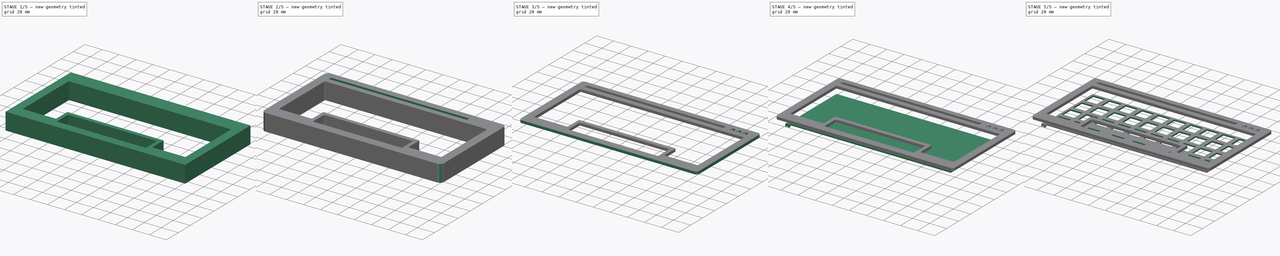
[diagram: build sequence overview — one tinted view per stage of 5, left to right]
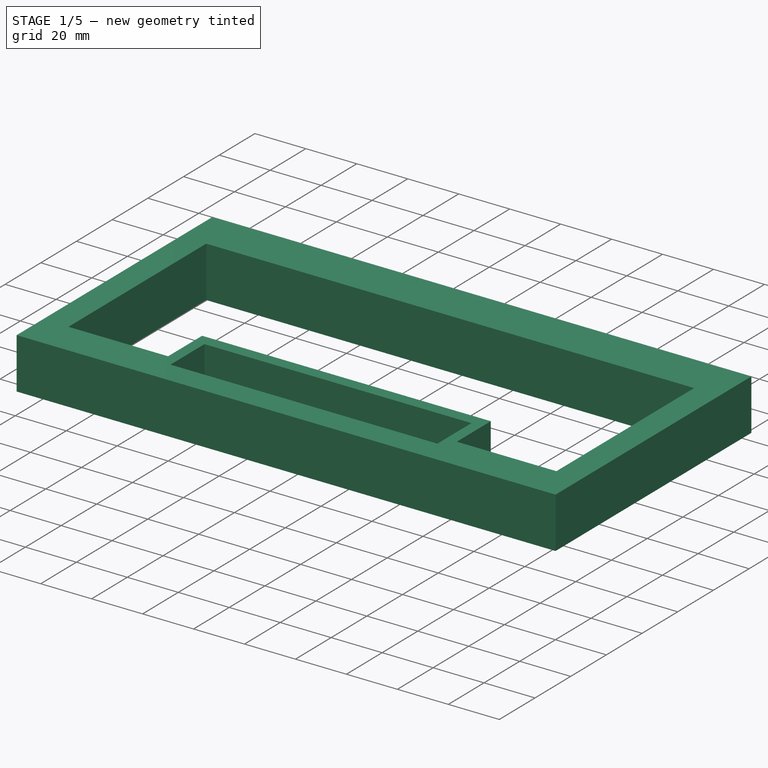
[diagram: stage 1 of 5 — iso view after this stage's code; geometry added in this stage tinted green]
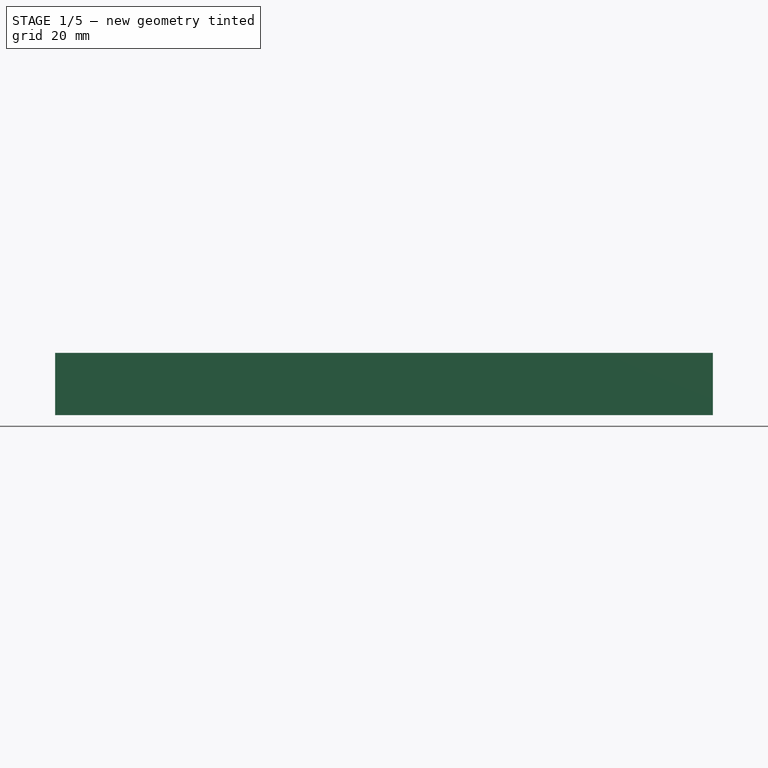
[diagram: stage 1 of 5 — front view after this stage's code; geometry added in this stage tinted green]
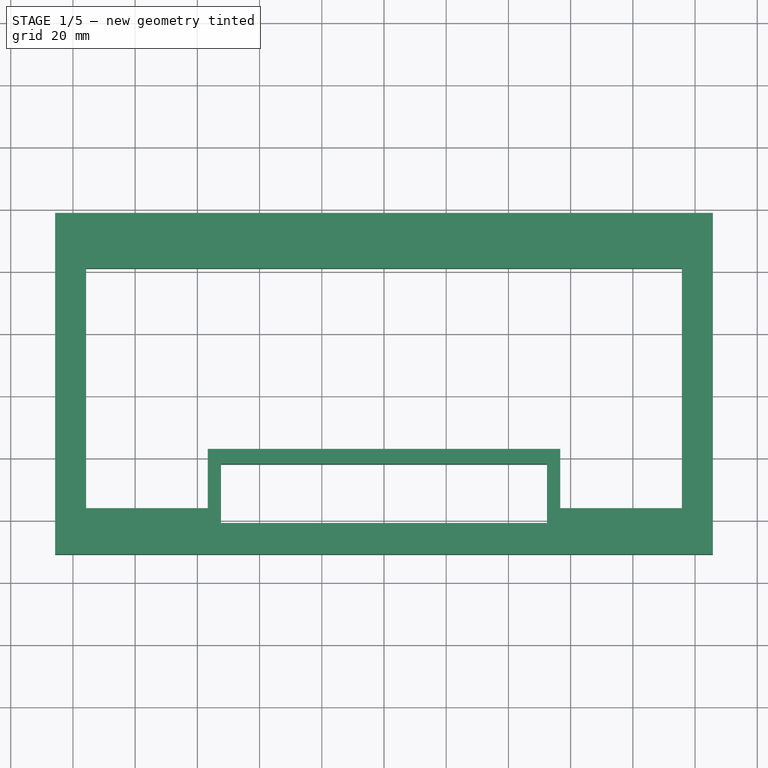
[diagram: stage 1 of 5 — top view after this stage's code; geometry added in this stage tinted green]
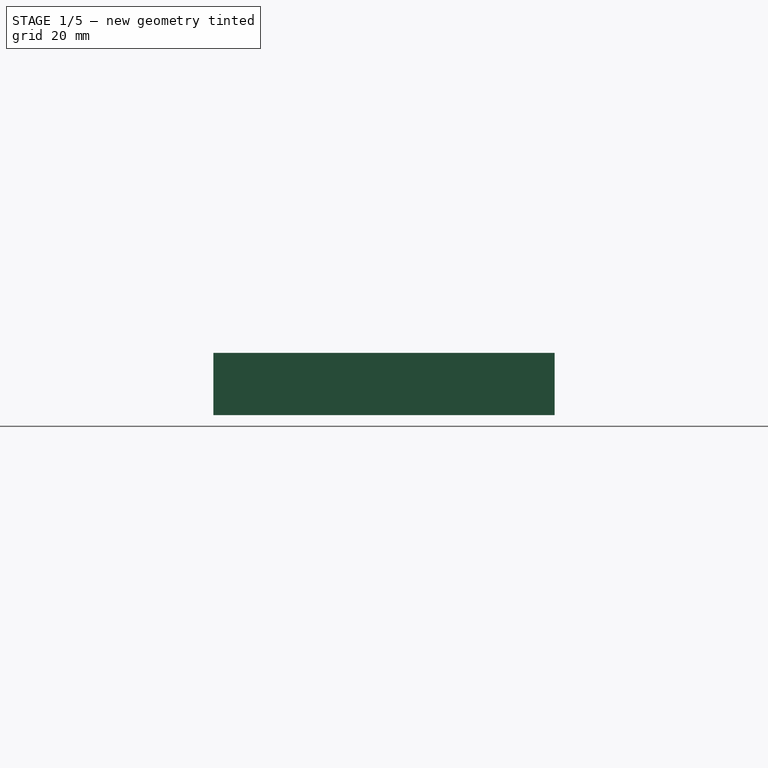
[diagram: stage 1 of 5 — right view after this stage's code; geometry added in this stage tinted green]
FCSTD DOCUMENT  (FreeCAD 0.20R29076 (Git))
Label: platecase
License: All rights reserved
LicenseURL: http://en.wikipedia.org/wiki/All_rights_reserved
objects: Sketcher::SketchObject×11, PartDesign::Pocket×8, PartDesign::Pad×4, PartDesign::Body×4, PartDesign::LinearPattern×2, PartDesign::Fillet×2, Spreadsheet::Sheet×1, PartDesign::MultiTransform×1, PartDesign::ShapeBinder×1
note: 47 computed .brp shape members not serialized (recipe doc carries the construction recipe); baked Part::Feature solids carry a one-line shape summary decoded from their .brp

FEATURE [PartDesign::Body] Body  label="plate"
  Group = -> [Sketch,Pad,Sketch001,Pocket,MultiTransform,LinearPattern,LinearPattern001,Sketch002,Pocket001]
  Origin = -> Origin
  Tip = -> Pocket001
FEATURE [Sketcher::SketchObject] Sketch003
  FullyConstrained = true
  MapMode = 5
  Support = -> [XY_Plane001]
  expr: Constraints[10] = <<vals>>.spacing * 4 + 2 * <<vals>>.border + 2 * <<vals>>.keysafety + <<vals>>.spaceOffset + <<vals>>.topExtr
  expr: Constraints[7] = <<vals>>.spacing * 10 + 2 * <<vals>>.border + 2 * <<vals>>.keysafety
  expr: Constraints[8] = (<<vals>>.spacing * 4 + 2 * <<vals>>.border + 2 * <<vals>>.keysafety + <<vals>>.spaceOffset) / 2
  sketch-geometry (4):
    g0: LineSegment StartX=-105.75 StartY=58.7438 StartZ=0 EndX=105.75 EndY=58.7438 EndZ=0
    g1: LineSegment StartX=105.75 StartY=58.7438 StartZ=0 EndX=105.75 EndY=-50.9813 EndZ=0
    g2: LineSegment StartX=105.75 StartY=-50.9813 StartZ=0 EndX=-105.75 EndY=-50.9813 EndZ=0
    g3: LineSegment StartX=-105.75 StartY=-50.9813 StartZ=0 EndX=-105.75 EndY=58.7438 EndZ=0
  constraints (11):
    c: Coincident(g0,g1)
    c: Coincident(g1,g2)
    c: Coincident(g2,g3)
    c: Coincident(g3,g0)
    c: Horizontal(g0)
    c: Vertical(g1)
    c: Vertical(g3)
    c: DistanceX(g0,g0) = 211.5
    c: DistanceY(g2,g-1) = 50.9813
    c: Symmetric(g2,g1,g-2)
    c: DistanceY(g3,g3) = 109.725
FEATURE [PartDesign::Pad] Pad001
  Direction = (0,0,1)
  Length = 20
  Length2 = 10
  Midplane = true
  Profile = -> Sketch003
  ReferenceAxis = -> Sketch003 [N_Axis]
  Type = 0
FEATURE [Sketcher::SketchObject] Sketch004
  ExternalGeometry = -> [Pad001]
  FullyConstrained = true
  MapMode = 5
  Placement = pos=(0,0,10) rot=(0,0,1;0rad)
  Support = -> [Pad001]
  expr: Constraints[15] = <<vals>>.spacing * 10 + <<vals>>.keysafety * 2
  expr: Constraints[16] = <<vals>>.spacing * 4 + 2 * <<vals>>.keysafety
  expr: Constraints[18] = <<vals>>.spacing * 3 + 2 * <<vals>>.keysafety
  expr: Constraints[19] = <<vals>>.spacing * 2 + 2 * <<vals>>.keysafety
  expr: Constraints[20] = <<vals>>.border + <<vals>>.topExtr
  sketch-geometry (8):
    g0: LineSegment StartX=-95.75 StartY=40.9813 StartZ=0 EndX=-95.75 EndY=-36.2187 EndZ=0
    g1: LineSegment StartX=-95.75 StartY=-36.2187 StartZ=0 EndX=-56.65 EndY=-36.2187 EndZ=0
    g2: LineSegment StartX=-56.65 StartY=-36.2187 StartZ=0 EndX=-56.65 EndY=-17.1687 EndZ=0
    g3: LineSegment StartX=-56.65 StartY=-17.1687 StartZ=0 EndX=56.65 EndY=-17.1687 EndZ=0
    g4: LineSegment StartX=56.65 StartY=-17.1687 StartZ=0 EndX=56.65 EndY=-36.2187 EndZ=0
    g5: LineSegment StartX=56.65 StartY=-36.2187 StartZ=0 EndX=95.75 EndY=-36.2187 EndZ=0
    g6: LineSegment StartX=95.75 StartY=-36.2187 StartZ=0 EndX=95.75 EndY=40.9813 EndZ=0
    g7: LineSegment StartX=95.75 StartY=40.9813 StartZ=0 EndX=-95.75 EndY=40.9813 EndZ=0
  constraints (21):
    c: Vertical(g0)
    c: Coincident(g0,g1)
    c: Coincident(g1,g2)
    c: Coincident(g3,g4)
    c: Coincident(g4,g5)
    c: Coincident(g5,g6)
    c: Vertical(g6)
    c: Coincident(g6,g7)
    c: Coincident(g7,g0)
    c: Horizontal(g7)
    c: Horizontal(g1)
    c: Vertical(g4)
    c: Symmetric(g2,g3,g-2)
    c: Symmetric(g4,g1,g-2)
    c: Symmetric(g0,g5,g-2)
    c: DistanceX(g7,g7) = 191.5
    c: DistanceY(g0,g0) = 77.2
    c: Coincident(g2,g3)
    c: DistanceY(g2,g0) = 58.15
    c: DistanceX(g1,g1) = 39.1
    c: DistanceY(g0,g-3) = 17.7625
FEATURE [PartDesign::Pocket] Pocket002
  BaseFeature = -> Pad001
  Direction = (0,0,-1)
  Length = 30
  Length2 = 5
  Profile = -> Sketch004
  ReferenceAxis = -> Sketch004 [N_Axis]
  Type = 0
FEATURE [Sketcher::SketchObject] Sketch005
  ExternalGeometry = -> [Pocket002]
  FullyConstrained = true
  MapMode = 5
  Placement = pos=(0,0,10) rot=(0,0,1;0rad)
  Support = -> [Pocket002]
  expr: Constraints[7] = <<vals>>.sowidth
  expr: Constraints[8] = <<vals>>.spacing
  expr: Constraints[9] = <<vals>>.spaceOffset
  sketch-geometry (4):
    g0: LineSegment StartX=-52.3875 StartY=-21.9312 StartZ=0 EndX=52.3875 EndY=-21.9312 EndZ=0
    g1: LineSegment StartX=52.3875 StartY=-21.9312 StartZ=0 EndX=52.3875 EndY=-40.9812 EndZ=0
    g2: LineSegment StartX=52.3875 StartY=-40.9812 StartZ=0 EndX=-52.3875 EndY=-40.9812 EndZ=0
    g3: LineSegment StartX=-52.3875 StartY=-40.9812 StartZ=0 EndX=-52.3875 EndY=-21.9312 EndZ=0
  constraints (11):
    c: Coincident(g0,g1)
    c: Coincident(g1,g2)
    c: Coincident(g2,g3)
    c: Coincident(g3,g0)
    c: Horizontal(g2)
    c: Vertical(g1)
    c: Vertical(g3)
    c: DistanceX(g0,g0) = 104.775
    c: DistanceY(g3,g3) = 19.05
    c: DistanceY(g0,g-3) = 4.7625
    c: Symmetric(g0,g0,g-2)
FEATURE [PartDesign::Pocket] Pocket003
  BaseFeature = -> Pocket002
  Direction = (0,0,-1)
  Length = 30
  Length2 = 5
  Profile = -> Sketch005
  ReferenceAxis = -> Sketch005 [N_Axis]
  Type = 0
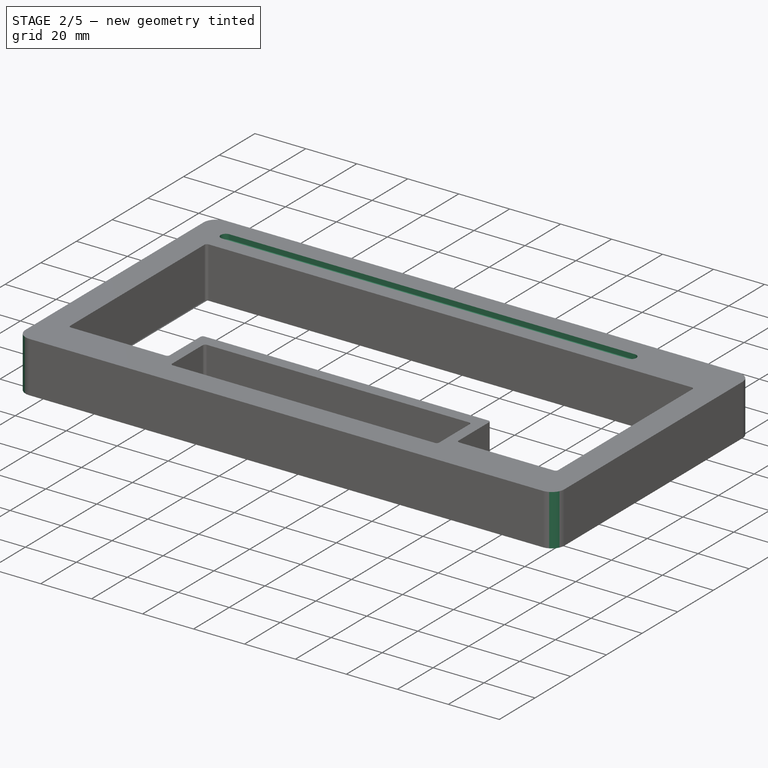
[diagram: stage 2 of 5 — iso view after this stage's code; geometry added in this stage tinted green]
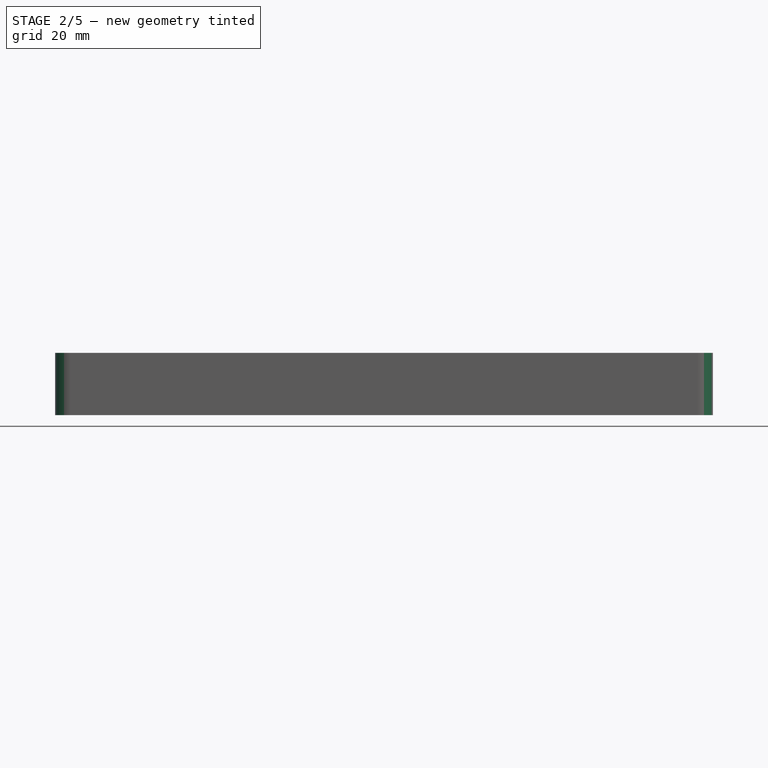
[diagram: stage 2 of 5 — front view after this stage's code; geometry added in this stage tinted green]
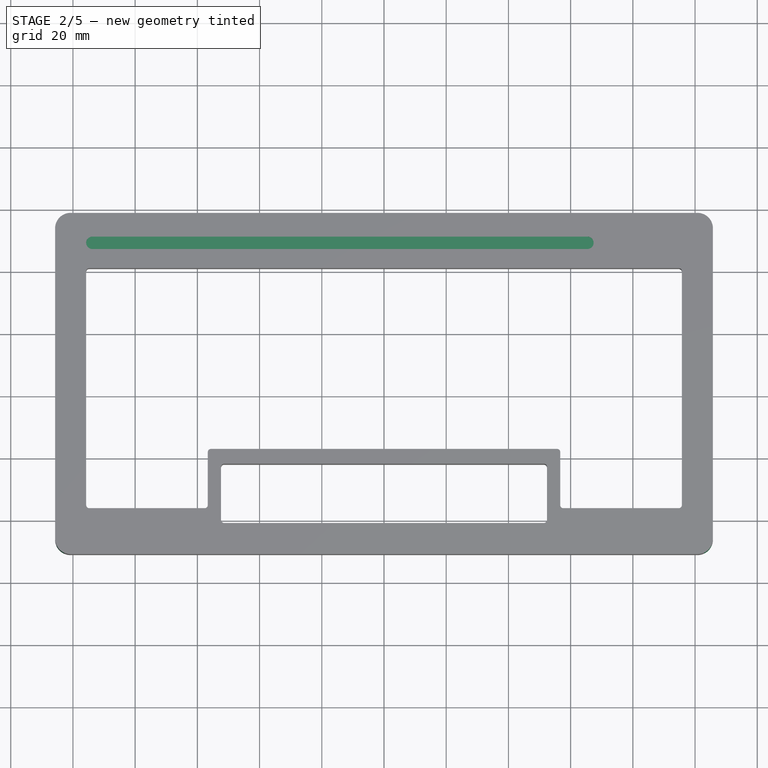
[diagram: stage 2 of 5 — top view after this stage's code; geometry added in this stage tinted green]
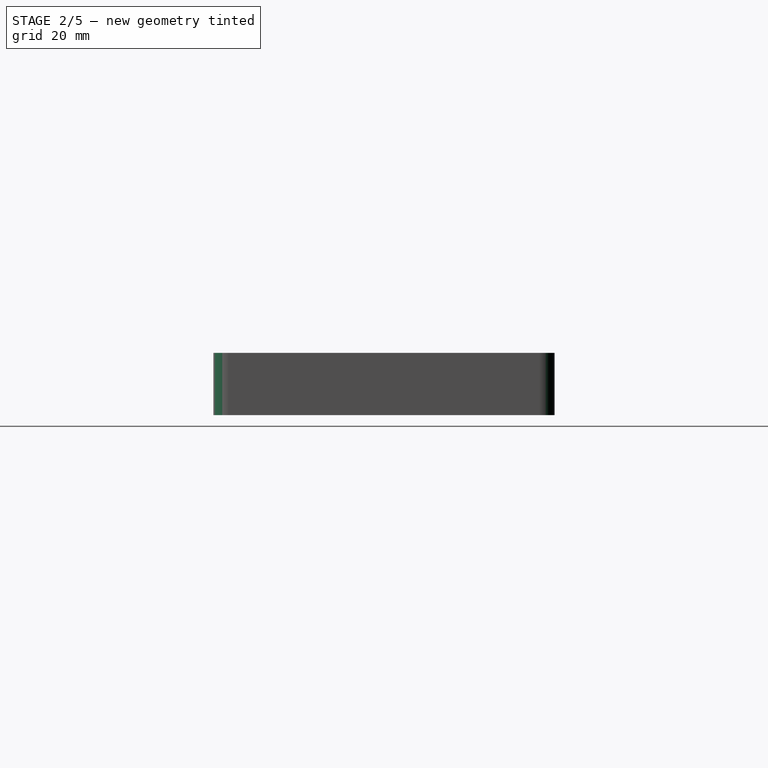
[diagram: stage 2 of 5 — right view after this stage's code; geometry added in this stage tinted green]
FEATURE [Sketcher::SketchObject] Sketch006
  ExternalGeometry = -> [Pocket003]
  FullyConstrained = false
  MapMode = 5
  Placement = pos=(0,0,10) rot=(0,0,1;0rad)
  Support = -> [Pocket003]
  expr: Constraints[24] = <<vals>>.borderWidth
  expr: Constraints[5] = <<vals>>.penHoldHeight
  sketch-geometry (8):
    g0: LineSegment StartX=-93.75 StartY=51.1125 StartZ=0 EndX=65.3788 EndY=51.1125 EndZ=0
    g1: LineSegment StartX=65.3788 StartY=47.1125 StartZ=0 EndX=-93.75 EndY=47.1125 EndZ=0
    g2: LineSegment StartX=-93.75 StartY=47.1125 StartZ=0 EndX=-93.75 EndY=40.9813 EndZ=0
    g3: ArcOfCircle CenterX=-93.75 CenterY=49.1125 CenterZ=0 NormalX=0 NormalY=0 NormalZ=1 AngleXU=0 Radius=2 StartAngle=1.5708 EndAngle=4.71239
    g4: ArcOfCircle CenterX=65.3788 CenterY=49.1125 CenterZ=0 NormalX=0 NormalY=0 NormalZ=1 AngleXU=0 Radius=2 StartAngle=4.71239 EndAngle=7.85398
    g5: LineSegment StartX=65.3788 StartY=49.1125 StartZ=0 EndX=67.3788 EndY=49.1125 EndZ=0
    g6: LineSegment StartX=-93.75 StartY=49.1125 StartZ=0 EndX=-95.75 EndY=49.1125 EndZ=0
    g7: LineSegment StartX=-93.75 StartY=51.1125 StartZ=0 EndX=-93.75 EndY=57.2438 EndZ=0
  constraints (26):
    c: Horizontal(g0)
    c: Horizontal(g1)
    c: Coincident(g2,g1)
    c: PointOnObject(g2,g-3)
    c: Vertical(g2)
    c: DistanceY(g1,g0) = 4
    c: Coincident(g3,g0)
    c: Coincident(g3,g1)
    c: Vertical(g0,g3)
    c: Vertical(g3,g1)
    c: Coincident(g4,g0)
    c: Coincident(g4,g1)
    c: Vertical(g4,g0)
    c: Vertical(g0,g1)
    c: Coincident(g5,g4)
    c: PointOnObject(g5,g4)
    c: Horizontal(g5)
    c: Coincident(g6,g3)
    c: PointOnObject(g6,g3)
    c: Horizontal(g6)
    c: Vertical(g-3,g6)
    c: DistanceY(g-6,g-5) = 14.7625
    c: Coincident(g7,g0)
    c: Vertical(g7)
    c: DistanceY(g7,g-4) = 1.5
    c: Equal(g7,g2)
FEATURE [PartDesign::Pocket] Pocket004
  BaseFeature = -> Pocket003
  Direction = (0,0,-1)
  Length = 2
  Length2 = 5
  Profile = -> Sketch006
  ReferenceAxis = -> Sketch006 [N_Axis]
  Type = 0
FEATURE [PartDesign::Fillet] Fillet
  Base = -> Pocket004 [Edge1,Edge5,Edge8,Edge2]
  BaseFeature = -> Pocket004
  Radius = 5
  SupportTransform = false
  UseAllEdges = false
FEATURE [PartDesign::Fillet] Fillet001
  Base = -> Fillet [Edge58,Edge60,Edge62,Edge57,Edge59,Edge56,Edge55,Edge61,Edge64,Edge63,Edge54,Edge53]
  BaseFeature = -> Fillet
  Radius = 1
  SupportTransform = false
  UseAllEdges = false
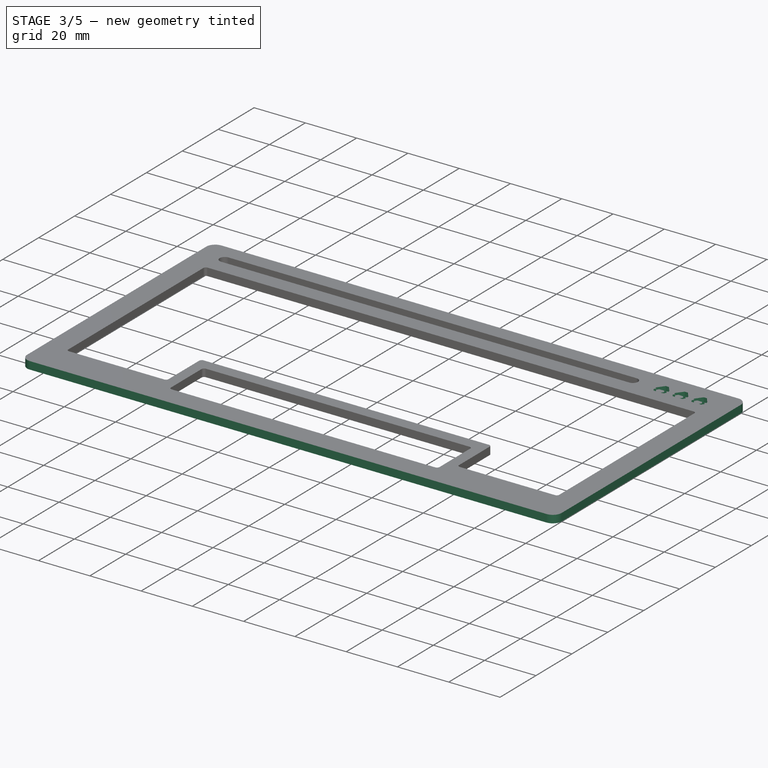
[diagram: stage 3 of 5 — iso view after this stage's code; geometry added in this stage tinted green]
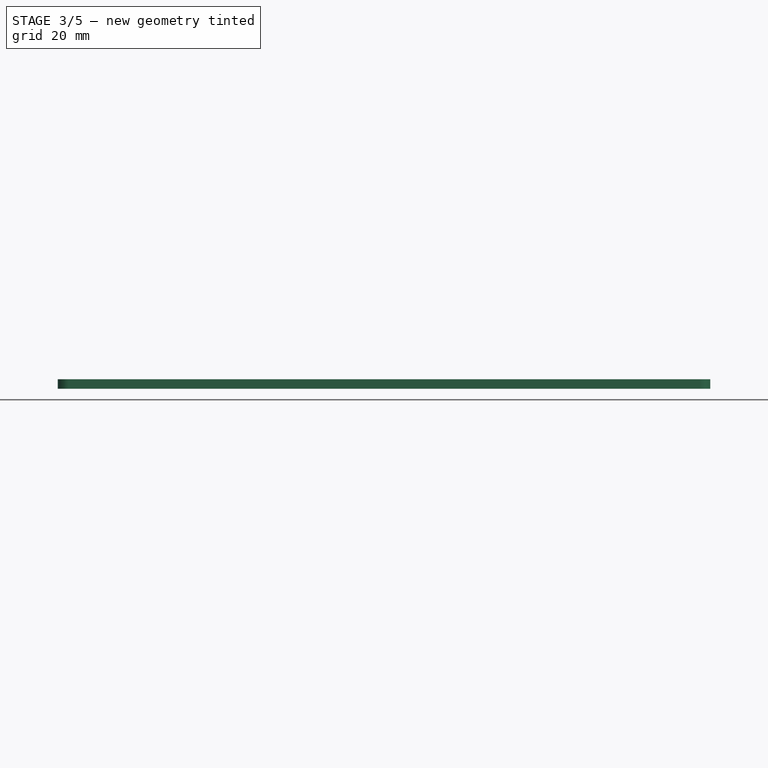
[diagram: stage 3 of 5 — front view after this stage's code; geometry added in this stage tinted green]
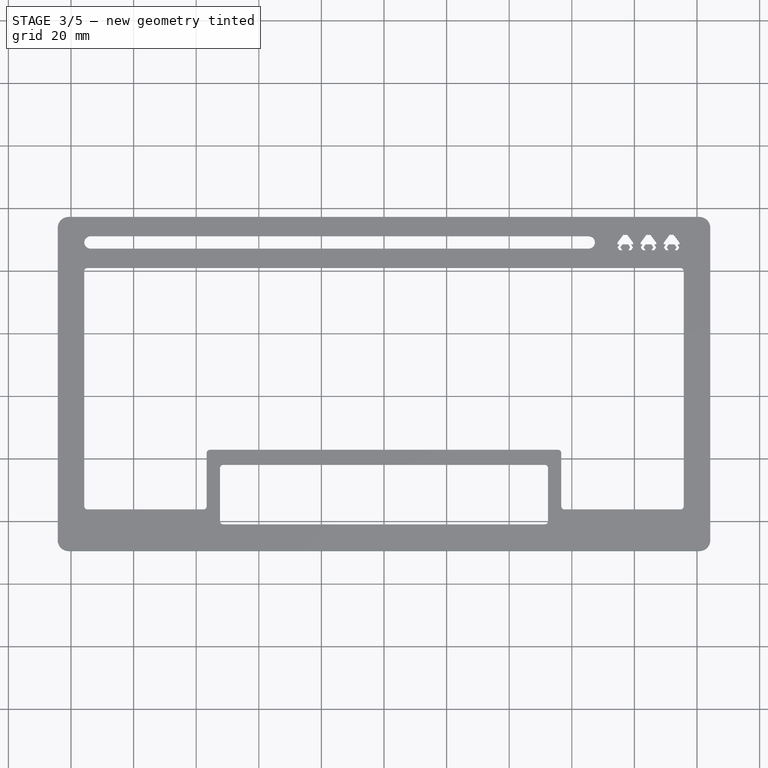
[diagram: stage 3 of 5 — top view after this stage's code; geometry added in this stage tinted green]
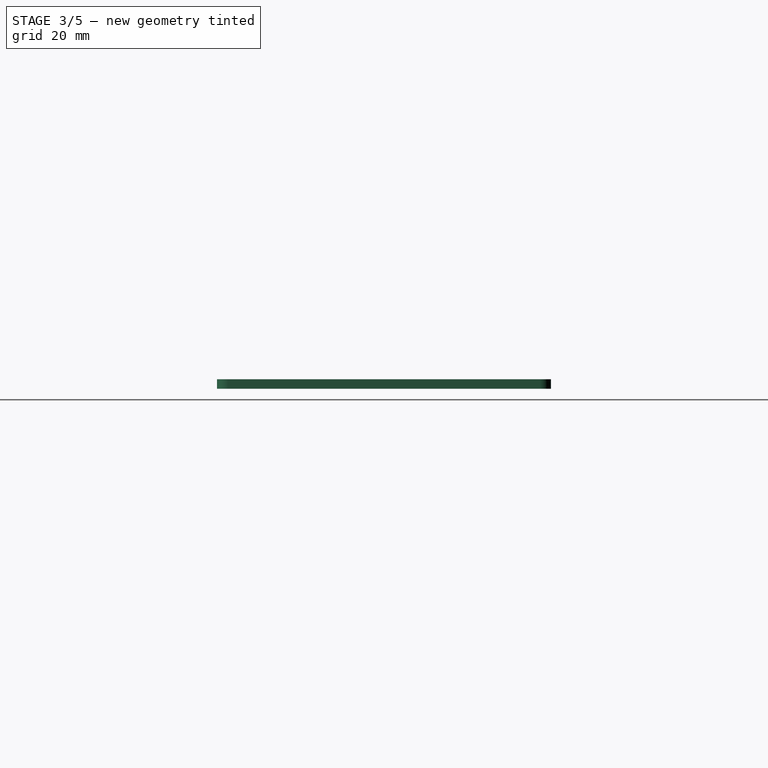
[diagram: stage 3 of 5 — right view after this stage's code; geometry added in this stage tinted green]
FEATURE [Sketcher::SketchObject] Sketch007
  ExternalGeometry = -> [Fillet001]
  FullyConstrained = false
  MapMode = 5
  Placement = pos=(0,0,10) rot=(0,0,1;0rad)
  Support = -> [Fillet001]
  expr: Constraints[335] = <<vals>>.borderWidth
  sketch-geometry (121):
    g0: LineSegment StartX=76.4651 StartY=51.6125 StartZ=0 EndX=77.7151 EndY=51.6125 EndZ=0
    g1: LineSegment StartX=77.7151 StartY=51.6125 StartZ=0 EndX=79.5901 EndY=49.1125 EndZ=0
    g2: LineSegment StartX=79.5901 StartY=49.1125 StartZ=0 EndX=79.5901 EndY=48.4875 EndZ=0
    g3: LineSegment StartX=79.5901 StartY=48.4875 StartZ=0 EndX=78.9651 EndY=48.4875 EndZ=0
    g4: LineSegment StartX=78.0276 StartY=48.4875 StartZ=0 EndX=76.1526 EndY=48.4875 EndZ=0
    g5: LineSegment StartX=76.1526 StartY=48.4875 StartZ=0 EndX=75.5276 EndY=47.55 EndZ=0
    g6: LineSegment StartX=75.5276 StartY=47.55 StartZ=0 EndX=76.1526 EndY=46.6125 EndZ=0
    g7: LineSegment StartX=75.2151 StartY=46.6125 StartZ=0 EndX=74.5901 EndY=47.55 EndZ=0
    g8: LineSegment StartX=74.5901 StartY=47.55 StartZ=0 EndX=75.2151 EndY=48.4875 EndZ=0
    g9: LineSegment StartX=75.2151 StartY=48.4875 StartZ=0 EndX=74.5901 EndY=48.4875 EndZ=0
    g10: LineSegment StartX=74.5901 StartY=48.4875 StartZ=0 EndX=74.5901 EndY=49.1125 EndZ=0
    g11: LineSegment StartX=74.5901 StartY=49.1125 StartZ=0 EndX=76.4651 EndY=51.6125 EndZ=0
    g12: LineSegment StartX=78.0276 StartY=48.4875 StartZ=0 EndX=78.6526 EndY=47.55 EndZ=0
    g13: LineSegment StartX=78.6526 StartY=47.55 StartZ=0 EndX=78.0276 EndY=46.6125 EndZ=0
    g14: LineSegment StartX=78.9651 StartY=46.6125 StartZ=0 EndX=79.5901 EndY=47.55 EndZ=0
    g15: LineSegment StartX=79.5901 StartY=47.55 StartZ=0 EndX=78.9651 EndY=48.4875 EndZ=0
    g16: LineSegment StartX=74.5901 StartY=51.6125 StartZ=0 EndX=75.2151 EndY=51.6125 EndZ=0
    g17: LineSegment StartX=75.2151 StartY=51.6125 StartZ=0 EndX=75.8401 EndY=51.6125 EndZ=0
    g18: LineSegment StartX=75.8401 StartY=51.6125 StartZ=0 EndX=76.4651 EndY=51.6125 EndZ=0
    g19: LineSegment StartX=76.4651 StartY=51.6125 StartZ=0 EndX=77.0901 EndY=51.6125 EndZ=0
    g20: LineSegment StartX=77.0901 StartY=51.6125 StartZ=0 EndX=77.7151 EndY=51.6125 EndZ=0
    g21: LineSegment StartX=77.7151 StartY=51.6125 StartZ=0 EndX=78.3401 EndY=51.6125 EndZ=0
    g22: LineSegment StartX=78.3401 StartY=51.6125 StartZ=0 EndX=78.9651 EndY=51.6125 EndZ=0
    g23: LineSegment StartX=78.9651 StartY=51.6125 StartZ=0 EndX=79.5901 EndY=51.6125 EndZ=0
    g24: LineSegment StartX=79.5901 StartY=51.6125 StartZ=0 EndX=79.5901 EndY=50.9875 EndZ=0
    g25: LineSegment StartX=79.5901 StartY=50.9875 StartZ=0 EndX=79.5901 EndY=50.3625 EndZ=0
    g26: LineSegment StartX=79.5901 StartY=50.3625 StartZ=0 EndX=79.5901 EndY=49.7375 EndZ=0
    g27: LineSegment StartX=79.5901 StartY=49.7375 StartZ=0 EndX=79.5901 EndY=49.1125 EndZ=0
    g28: LineSegment StartX=79.5901 StartY=49.1125 StartZ=0 EndX=79.5901 EndY=48.4875 EndZ=0
    g29: LineSegment StartX=79.5901 StartY=48.4875 StartZ=0 EndX=79.5901 EndY=47.8625 EndZ=0
    g30: LineSegment StartX=79.5901 StartY=47.8625 StartZ=0 EndX=79.5901 EndY=47.2375 EndZ=0
    g31: LineSegment StartX=79.5901 StartY=47.2375 StartZ=0 EndX=79.5901 EndY=46.6125 EndZ=0
    g32: LineSegment StartX=75.2151 StartY=46.6125 StartZ=0 EndX=76.1526 EndY=46.6125 EndZ=0
    g33: LineSegment StartX=78.0276 StartY=46.6125 StartZ=0 EndX=78.9651 EndY=46.6125 EndZ=0
    g34: LineSegment StartX=78.0276 StartY=48.4875 StartZ=0 EndX=78.0276 EndY=51.6125 EndZ=0
    g35: LineSegment StartX=76.1526 StartY=48.4875 StartZ=0 EndX=76.1526 EndY=51.6125 EndZ=0
    g36: LineSegment StartX=95.7818 StartY=51.3623 StartZ=0 EndX=95.7818 EndY=45.8623 EndZ=0
    g37: LineSegment StartX=73.7818 StartY=45.8623 StartZ=0 EndX=73.7818 EndY=51.3623 EndZ=0
    g38: LineSegment StartX=65.2818 StartY=53.017 StartZ=0 EndX=103.282 EndY=53.017 EndZ=0
    g39: LineSegment StartX=65.2818 StartY=41.017 StartZ=0 EndX=65.2818 EndY=53.017 EndZ=0
    g40: GeomPoint X=95.7818 Y=48.6123 Z=0
    g41: LineSegment StartX=95.7818 StartY=51.3623 StartZ=0 EndX=73.7818 EndY=51.3623 EndZ=0
    g42: LineSegment StartX=73.7818 StartY=45.8623 StartZ=0 EndX=95.7818 EndY=45.8623 EndZ=0
    g43: LineSegment StartX=83.869 StartY=51.6093 StartZ=0 EndX=85.119 EndY=51.6093 EndZ=0
    g44: LineSegment StartX=85.119 StartY=51.6093 StartZ=0 EndX=86.994 EndY=49.1093 EndZ=0
    g45: LineSegment StartX=86.994 StartY=49.1093 StartZ=0 EndX=86.994 EndY=48.4843 EndZ=0
    g46: LineSegment StartX=86.994 StartY=48.4843 StartZ=0 EndX=86.369 EndY=48.4843 EndZ=0
    g47: LineSegment StartX=85.4315 StartY=48.4843 StartZ=0 EndX=83.5565 EndY=48.4843 EndZ=0
    g48: LineSegment StartX=83.5565 StartY=48.4843 StartZ=0 EndX=82.9315 EndY=47.5468 EndZ=0
    g49: LineSegment StartX=82.9315 StartY=47.5468 StartZ=0 EndX=83.5565 EndY=46.6093 EndZ=0
    g50: LineSegment StartX=82.619 StartY=46.6093 StartZ=0 EndX=81.994 EndY=47.5468 EndZ=0
    g51: LineSegment StartX=81.994 StartY=47.5468 StartZ=0 EndX=82.619 EndY=48.4843 EndZ=0
    g52: LineSegment StartX=82.619 StartY=48.4843 StartZ=0 EndX=81.994 EndY=48.4843 EndZ=0
    g53: LineSegment StartX=81.994 StartY=48.4843 StartZ=0 EndX=81.994 EndY=49.1093 EndZ=0
    g54: LineSegment StartX=81.994 StartY=49.1093 StartZ=0 EndX=83.869 EndY=51.6093 EndZ=0
    g55: LineSegment StartX=85.4315 StartY=48.4843 StartZ=0 EndX=86.0565 EndY=47.5468 EndZ=0
    g56: LineSegment StartX=86.0565 StartY=47.5468 StartZ=0 EndX=85.4315 EndY=46.6093 EndZ=0
    g57: LineSegment StartX=86.369 StartY=46.6093 StartZ=0 EndX=86.994 EndY=47.5468 EndZ=0
    g58: LineSegment StartX=86.994 StartY=47.5468 StartZ=0 EndX=86.369 EndY=48.4843 EndZ=0
    g59: LineSegment StartX=81.994 StartY=51.6093 StartZ=0 EndX=82.619 EndY=51.6093 EndZ=0
    g60: LineSegment StartX=82.619 StartY=51.6093 StartZ=0 EndX=83.244 EndY=51.6093 EndZ=0
    g61: LineSegment StartX=83.244 StartY=51.6093 StartZ=0 EndX=83.869 EndY=51.6093 EndZ=0
    g62: LineSegment StartX=83.869 StartY=51.6093 StartZ=0 EndX=84.494 EndY=51.6093 EndZ=0
    g63: LineSegment StartX=84.494 StartY=51.6093 StartZ=0 EndX=85.119 EndY=51.6093 EndZ=0
    g64: LineSegment StartX=85.119 StartY=51.6093 StartZ=0 EndX=85.744 EndY=51.6093 EndZ=0
    g65: LineSegment StartX=85.744 StartY=51.6093 StartZ=0 EndX=86.369 EndY=51.6093 EndZ=0
    g66: LineSegment StartX=86.369 StartY=51.6093 StartZ=0 EndX=86.994 EndY=51.6093 EndZ=0
    g67: LineSegment StartX=86.994 StartY=51.6093 StartZ=0 EndX=86.994 EndY=50.9843 EndZ=0
    g68: LineSegment StartX=86.994 StartY=50.9843 StartZ=0 EndX=86.994 EndY=50.3593 EndZ=0
    g69: LineSegment StartX=86.994 StartY=50.3593 StartZ=0 EndX=86.994 EndY=49.7343 EndZ=0
    g70: LineSegment StartX=86.994 StartY=49.7343 StartZ=0 EndX=86.994 EndY=49.1093 EndZ=0
    g71: LineSegment StartX=86.994 StartY=49.1093 StartZ=0 EndX=86.994 EndY=48.4843 EndZ=0
    g72: LineSegment StartX=86.994 StartY=48.4843 StartZ=0 EndX=86.994 EndY=47.8593 EndZ=0
    g73: LineSegment StartX=86.994 StartY=47.8593 StartZ=0 EndX=86.994 EndY=47.2343 EndZ=0
    g74: LineSegment StartX=86.994 StartY=47.2343 StartZ=0 EndX=86.994 EndY=46.6093 EndZ=0
    g75: LineSegment StartX=82.619 StartY=46.6093 StartZ=0 EndX=83.5565 EndY=46.6093 EndZ=0
    g76: LineSegment StartX=85.4315 StartY=46.6093 StartZ=0 EndX=86.369 EndY=46.6093 EndZ=0
    g77: LineSegment StartX=85.4315 StartY=48.4843 StartZ=0 EndX=85.4315 EndY=51.6093 EndZ=0
    g78: LineSegment StartX=83.5565 StartY=48.4843 StartZ=0 EndX=83.5565 EndY=51.6093 EndZ=0
    g79: LineSegment StartX=76.4651 StartY=51.6125 StartZ=0 EndX=83.869 EndY=51.6093 EndZ=0
    g80: LineSegment StartX=91.2729 StartY=51.6061 StartZ=0 EndX=92.5229 EndY=51.6061 EndZ=0
    g81: LineSegment StartX=92.5229 StartY=51.6061 StartZ=0 EndX=94.3979 EndY=49.1061 EndZ=0
    g82: LineSegment StartX=94.3979 StartY=49.1061 StartZ=0 EndX=94.3979 EndY=48.4811 EndZ=0
    g83: LineSegment StartX=94.3979 StartY=48.4811 StartZ=0 EndX=93.7729 EndY=48.4811 EndZ=0
    g84: LineSegment StartX=92.8354 StartY=48.4811 StartZ=0 EndX=90.9604 EndY=48.4811 EndZ=0
    g85: LineSegment StartX=90.9604 StartY=48.4811 StartZ=0 EndX=90.3354 EndY=47.5436 EndZ=0
    g86: LineSegment StartX=90.3354 StartY=47.5436 StartZ=0 EndX=90.9604 EndY=46.6061 EndZ=0
    g87: LineSegment StartX=90.0229 StartY=46.6061 StartZ=0 EndX=89.3979 EndY=47.5436 EndZ=0
    g88: LineSegment StartX=89.3979 StartY=47.5436 StartZ=0 EndX=90.0229 EndY=48.4811 EndZ=0
    g89: LineSegment StartX=90.0229 StartY=48.4811 StartZ=0 EndX=89.3979 EndY=48.4811 EndZ=0
    g90: LineSegment StartX=89.3979 StartY=48.4811 StartZ=0 EndX=89.3979 EndY=49.1061 EndZ=0
    g91: LineSegment StartX=89.3979 StartY=49.1061 StartZ=0 EndX=91.2729 EndY=51.6061 EndZ=0
    g92: LineSegment StartX=92.8354 StartY=48.4811 StartZ=0 EndX=93.4604 EndY=47.5436 EndZ=0
    g93: LineSegment StartX=93.4604 StartY=47.5436 StartZ=0 EndX=92.8354 EndY=46.6061 EndZ=0
    g94: LineSegment StartX=93.7729 StartY=46.6061 StartZ=0 EndX=94.3979 EndY=47.5436 EndZ=0
    g95: LineSegment StartX=94.3979 StartY=47.5436 StartZ=0 EndX=93.7729 EndY=48.4811 EndZ=0
    g96: LineSegment StartX=89.3979 StartY=51.6061 StartZ=0 EndX=90.0229 EndY=51.6061 EndZ=0
    g97: LineSegment StartX=90.0229 StartY=51.6061 StartZ=0 EndX=90.6479 EndY=51.6061 EndZ=0
    g98: LineSegment StartX=90.6479 StartY=51.6061 StartZ=0 EndX=91.2729 EndY=51.6061 EndZ=0
    g99: LineSegment StartX=91.2729 StartY=51.6061 StartZ=0 EndX=91.8979 EndY=51.6061 EndZ=0
    g100: LineSegment StartX=91.8979 StartY=51.6061 StartZ=0 EndX=92.5229 EndY=51.6061 EndZ=0
    g101: LineSegment StartX=92.5229 StartY=51.6061 StartZ=0 EndX=93.1479 EndY=51.6061 EndZ=0
    g102: LineSegment StartX=93.1479 StartY=51.6061 StartZ=0 EndX=93.7729 EndY=51.6061 EndZ=0
    g103: LineSegment StartX=93.7729 StartY=51.6061 StartZ=0 EndX=94.3979 EndY=51.6061 EndZ=0
    g104: LineSegment StartX=94.3979 StartY=51.6061 StartZ=0 EndX=94.3979 EndY=50.9811 EndZ=0
    g105: LineSegment StartX=94.3979 StartY=50.9811 StartZ=0 EndX=94.3979 EndY=50.3561 EndZ=0
    g106: LineSegment StartX=94.3979 StartY=50.3561 StartZ=0 EndX=94.3979 EndY=49.7311 EndZ=0
    g107: LineSegment StartX=94.3979 StartY=49.7311 StartZ=0 EndX=94.3979 EndY=49.1061 EndZ=0
    g108: LineSegment StartX=94.3979 StartY=49.1061 StartZ=0 EndX=94.3979 EndY=48.4811 EndZ=0
    g109: LineSegment StartX=94.3979 StartY=48.4811 StartZ=0 EndX=94.3979 EndY=47.8561 EndZ=0
    g110: LineSegment StartX=94.3979 StartY=47.8561 StartZ=0 EndX=94.3979 EndY=47.2311 EndZ=0
    g111: LineSegment StartX=94.3979 StartY=47.2311 StartZ=0 EndX=94.3979 EndY=46.6061 EndZ=0
    g112: LineSegment StartX=90.0229 StartY=46.6061 StartZ=0 EndX=90.9604 EndY=46.6061 EndZ=0
    g113: LineSegment StartX=92.8354 StartY=46.6061 StartZ=0 EndX=93.7729 EndY=46.6061 EndZ=0
    g114: LineSegment StartX=92.8354 StartY=48.4811 StartZ=0 EndX=92.8354 EndY=51.6061 EndZ=0
    g115: LineSegment StartX=90.9604 StartY=48.4811 StartZ=0 EndX=90.9604 EndY=51.6061 EndZ=0
    g116: LineSegment StartX=83.869 StartY=51.6093 StartZ=0 EndX=91.2729 EndY=51.6061 EndZ=0
    g117: LineSegment StartX=65.2818 StartY=41.017 StartZ=0 EndX=103.282 EndY=41.017 EndZ=0
    g118: LineSegment StartX=103.282 StartY=41.017 StartZ=0 EndX=103.282 EndY=53.017 EndZ=0
    g119: LineSegment StartX=79.5901 StartY=49.1125 StartZ=0 EndX=79.5901 EndY=40.9813 EndZ=0
    g120: LineSegment StartX=79.5901 StartY=49.1125 StartZ=0 EndX=79.5901 EndY=57.2438 EndZ=0
  constraints (337):
    c: Horizontal(g0)
    c: Coincident(g0,g1)
    c: Coincident(g1,g2)
    c: Coincident(g2,g3)
    c: Horizontal(g4)
    c: Coincident(g4,g5)
    c: Coincident(g5,g6)
    c: Coincident(g7,g8)
    c: Coincident(g8,g9)
    c: Coincident(g9,g10)
    c: Coincident(g10,g11)
    c: Coincident(g11,g0)
    c: Coincident(g4,g12)
    c: Coincident(g12,g13)
    c: Coincident(g14,g15)
    c: Coincident(g15,g3)
    c: Horizontal(g14,g12)
    c: Horizontal(g12,g5)
    c: Horizontal(g5,g7)
    c: Equal(g6,g7)
    c: Equal(g7,g13)
    c: Equal(g13,g14)
    c: Horizontal(g14,g13)
    c: Horizontal(g13,g6)
    c: Horizontal(g9)
    c: Horizontal(g3)
    c: Vertical(g2)
    c: Vertical(g10)
    c: Horizontal(g3,g4)
    c: Horizontal(g4,g8)
    c: Parallel(g15,g12)
    c: Parallel(g5,g8)
    c: Equal(g6,g5)
    c: Equal(g12,g13)
    c: Equal(g1,g11)
    c: Equal(g2,g10)
    c: Equal(g3,g9)
    c: Horizontal(g16)
    c: Coincident(g16,g17)
    c: Horizontal(g17)
    c: Coincident(g17,g18)
    c: Coincident(g18,g19)
    c: Horizontal(g19)
    c: Coincident(g19,g20)
    c: Coincident(g20,g21)
    c: Coincident(g21,g22)
    c: Coincident(g22,g23)
    c: Coincident(g23,g24)
    c: Vertical(g24)
    c: Coincident(g24,g25)
    c: Coincident(g25,g26)
    c: Coincident(g26,g27)
    c: Vertical(g27)
    c: Coincident(g27,g28)
    c: Coincident(g28,g29)
    c: Coincident(g29,g30)
    c: Coincident(g30,g31)
    c: Equal(g16,g17)
    c: Equal(g17,g18)
    c: Equal(g18,g20)
    c: Equal(g20,g19)
    c: Equal(g19,g21)
    c: Equal(g21,g22)
    c: Equal(g22,g23)
    c: Equal(g23,g24)
    c: Equal(g24,g25)
    c: Equal(g25,g26)
    c: Equal(g26,g27)
    c: Equal(g27,g28)
    c: Equal(g28,g29)
    c: Equal(g29,g30)
    c: Equal(g30,g31)
    c: Horizontal(g18)
    c: Horizontal(g21)
    c: Horizontal(g22)
    c: Horizontal(g23)
    c: Vertical(g25)
    c: Vertical(g26)
    c: Vertical(g29)
    c: Vertical(g30)
    c: Vertical(g31)
    c: DistanceY(g31,g23) = 5
    c: Coincident(g0,g18)
    c: Coincident(g20,g0)
    c: Coincident(g2,g28)
    c: Coincident(g1,g27)
    c: Symmetric(g29,g30,g14)
    c: Coincident(g32,g7)
    c: Coincident(g32,g6)
    c: Horizontal(g32)
    c: Coincident(g33,g13)
    c: Coincident(g33,g14)
    c: Coincident(g34,g4)
    c: Symmetric(g0,g21,g34)
    c: Vertical(g34)
    c: Vertical(g3,g22)
    c: Coincident(g35,g4)
    c: Vertical(g35)
    c: Symmetric(g17,g0,g35)
    c: Vertical(g13,g4)
    c: Vertical(g36)
    c: Vertical(g37)
    c: DistanceX(g37,g36) = 22
    c: DistanceY(g36,g36) = 5.5
    c: Coincident(g39,g38)
    c: Horizontal(g38)
    c: Vertical(g39)
    c: DistanceX(g38,g38) = 38
    c: Symmetric(g36,g36,g40)
    c: Coincident(g41,g36)
    c: Coincident(g41,g37)
    c: Horizontal(g41)
    c: Coincident(g42,g37)
    c: Coincident(g42,g36)
    c: Horizontal(g42)
    c: Horizontal(g43)
    c: Coincident(g43,g44)
    c: Coincident(g44,g45)
    c: Coincident(g45,g46)
    c: Horizontal(g47)
    c: Coincident(g47,g48)
    c: Coincident(g48,g49)
    c: Coincident(g50,g51)
    c: Coincident(g51,g52)
    c: Coincident(g52,g53)
    c: Coincident(g53,g54)
    c: Coincident(g54,g43)
    c: Coincident(g47,g55)
    c: Coincident(g55,g56)
    c: Coincident(g57,g58)
    c: Coincident(g58,g46)
    c: Horizontal(g57,g55)
    c: Horizontal(g55,g48)
    c: Horizontal(g48,g50)
    c: Equal(g49,g50)
    c: Equal(g50,g56)
    c: Equal(g56,g57)
    c: Horizontal(g57,g56)
    c: Horizontal(g56,g49)
    c: Horizontal(g52)
    c: Horizontal(g46)
    c: Vertical(g45)
    c: Vertical(g53)
    c: Horizontal(g46,g47)
    c: Horizontal(g47,g51)
    c: Parallel(g58,g55)
    c: Parallel(g48,g51)
    c: Equal(g49,g48)
    c: Equal(g55,g56)
    c: Equal(g44,g54)
    c: Equal(g45,g53)
    c: Equal(g46,g52)
    c: Horizontal(g59)
    c: Coincident(g59,g60)
    c: Horizontal(g60)
    c: Coincident(g60,g61)
    c: Coincident(g61,g62)
    c: Horizontal(g62)
    c: Coincident(g62,g63)
    c: Coincident(g63,g64)
    c: Coincident(g64,g65)
    c: Coincident(g65,g66)
    c: Coincident(g66,g67)
    c: Vertical(g67)
    c: Coincident(g67,g68)
    c: Coincident(g68,g69)
    c: Coincident(g69,g70)
    c: Vertical(g70)
    c: Coincident(g70,g71)
    c: Coincident(g71,g72)
    c: Coincident(g72,g73)
    c: Coincident(g73,g74)
    c: Equal(g59,g60)
    c: Equal(g60,g61)
    c: Equal(g61,g63)
    c: Equal(g63,g62)
    c: Equal(g62,g64)
    c: Equal(g64,g65)
    c: Equal(g65,g66)
    c: Equal(g66,g67)
    c: Equal(g67,g68)
    c: Equal(g68,g69)
    c: Equal(g69,g70)
    c: Equal(g70,g71)
    c: Equal(g71,g72)
    c: Equal(g72,g73)
    c: Equal(g73,g74)
    c: Horizontal(g61)
    c: Horizontal(g64)
    c: Horizontal(g65)
    c: Horizontal(g66)
    c: Vertical(g68)
    c: Vertical(g69)
    c: Vertical(g72)
    c: Vertical(g73)
    c: Vertical(g74)
    c: DistanceY(g74,g66) = 5
    c: Coincident(g43,g61)
    c: Coincident(g63,g43)
    c: Coincident(g45,g71)
    c: Coincident(g44,g70)
    c: Symmetric(g72,g73,g57)
    c: Coincident(g75,g50)
    c: Coincident(g75,g49)
    c: Horizontal(g75)
    c: Coincident(g76,g56)
    c: Coincident(g76,g57)
    c: Coincident(g77,g47)
    c: Symmetric(g43,g64,g77)
    c: Vertical(g77)
    c: Vertical(g46,g65)
    c: Coincident(g78,g47)
    c: Vertical(g78)
    c: Symmetric(g60,g43,g78)
    c: Vertical(g56,g47)
    c: Coincident(g0,g79)
    c: Coincident(g43,g79)
    c: Distance(g79) = 7.40388
    c: Angle(g79) = -0.000432341
    c: Horizontal(g80)
    c: Coincident(g80,g81)
    c: Coincident(g81,g82)
    c: Coincident(g82,g83)
    c: Horizontal(g84)
    c: Coincident(g84,g85)
    c: Coincident(g85,g86)
    c: Coincident(g87,g88)
    c: Coincident(g88,g89)
    c: Coincident(g89,g90)
    c: Coincident(g90,g91)
    c: Coincident(g91,g80)
    c: Coincident(g84,g92)
    c: Coincident(g92,g93)
    c: Coincident(g94,g95)
    c: Coincident(g95,g83)
    c: Horizontal(g94,g92)
    c: Horizontal(g92,g85)
    c: Horizontal(g85,g87)
    c: Equal(g86,g87)
    c: Equal(g87,g93)
    c: Equal(g93,g94)
    c: Horizontal(g94,g93)
    c: Horizontal(g93,g86)
    c: Horizontal(g89)
    c: Horizontal(g83)
    c: Vertical(g82)
    c: Vertical(g90)
    c: Horizontal(g83,g84)
    c: Horizontal(g84,g88)
    c: Parallel(g95,g92)
    c: Parallel(g85,g88)
    c: Equal(g86,g85)
    c: Equal(g92,g93)
    c: Equal(g81,g91)
    c: Equal(g82,g90)
    c: Equal(g83,g89)
    c: Horizontal(g96)
    c: Coincident(g96,g97)
    c: Horizontal(g97)
    c: Coincident(g97,g98)
    c: Coincident(g98,g99)
    c: Horizontal(g99)
    c: Coincident(g99,g100)
    c: Coincident(g100,g101)
    c: Coincident(g101,g102)
    c: Coincident(g102,g103)
    c: Coincident(g103,g104)
    c: Vertical(g104)
    c: Coincident(g104,g105)
    c: Coincident(g105,g106)
    c: Coincident(g106,g107)
    c: Vertical(g107)
    c: Coincident(g107,g108)
    c: Coincident(g108,g109)
    c: Coincident(g109,g110)
    c: Coincident(g110,g111)
    c: Equal(g96,g97)
    c: Equal(g97,g98)
    c: Equal(g98,g100)
    c: Equal(g100,g99)
    c: Equal(g99,g101)
    c: Equal(g101,g102)
    c: Equal(g102,g103)
    c: Equal(g103,g104)
    c: Equal(g104,g105)
    c: Equal(g105,g106)
    c: Equal(g106,g107)
    c: Equal(g107,g108)
    c: Equal(g108,g109)
    c: Equal(g109,g110)
    c: Equal(g110,g111)
    c: Horizontal(g98)
    c: Horizontal(g101)
    c: Horizontal(g102)
    c: Horizontal(g103)
    c: Vertical(g105)
    c: Vertical(g106)
    c: Vertical(g109)
    c: Vertical(g110)
    c: Vertical(g111)
    c: DistanceY(g111,g103) = 5
    c: Coincident(g80,g98)
    c: Coincident(g100,g80)
    c: Coincident(g82,g108)
    c: Coincident(g81,g107)
    c: Symmetric(g109,g110,g94)
    c: Coincident(g112,g87)
    c: Coincident(g112,g86)
    c: Horizontal(g112)
    c: Coincident(g113,g93)
    c: Coincident(g113,g94)
    c: Coincident(g114,g84)
    c: Symmetric(g80,g101,g114)
    c: Vertical(g114)
    c: Vertical(g83,g102)
    c: Coincident(g115,g84)
    c: Vertical(g115)
    c: Symmetric(g97,g80,g115)
    c: Vertical(g93,g84)
    c: Coincident(g43,g116)
    c: Coincident(g80,g116)
    c: Equal(g79,g116)
    c: Parallel(g116,g79)
    c: DistanceX(g39,g37) = 8.5
    c: Coincident(g39,g117)
    c: Horizontal(g117)
    c: Coincident(g117,g118)
    c: Coincident(g118,g38)
    c: Vertical(g118)
    c: DistanceY(g118,g118) = 12
    c: Coincident(g119,g1)
    c: PointOnObject(g119,g-6)
    c: Vertical(g119)
    c: Coincident(g120,g1)
    c: Vertical(g120)
    c: DistanceY(g120,g-7) = 1.5
    c: Equal(g120,g119)
FEATURE [PartDesign::Pocket] Pocket005
  BaseFeature = -> Fillet001
  Direction = (0,0,-1)
  Length = 20
  Length2 = 5
  Profile = -> Sketch007
  ReferenceAxis = -> Sketch007 [N_Axis]
  Type = 0
FEATURE [PartDesign::Body] Body002
  Group = -> [Sketch008,Pad002]
  Origin = -> Origin002
  Placement = pos=(0,0,7) rot=(0,0,1;0rad)
  Tip = -> Pad002
FEATURE [Sketcher::SketchObject] Sketch009
  ExternalGeometry = -> [Pocket005]
  FullyConstrained = true
  MapMode = 5
  Placement = pos=(0,0,10) rot=(0,0,1;0rad)
  Support = -> [Pocket005]
  expr: Constraints[23] = <<vals>>.borderWidth
  sketch-geometry (12):
    g0: ArcOfCircle CenterX=100.75 CenterY=-45.9813 CenterZ=0 NormalX=0 NormalY=0 NormalZ=1 AngleXU=0 Radius=3.5 StartAngle=4.71239 EndAngle=6.28319
    g1: ArcOfCircle CenterX=-100.75 CenterY=-45.9813 CenterZ=0 NormalX=0 NormalY=0 NormalZ=1 AngleXU=0 Radius=3.5 StartAngle=3.14159 EndAngle=4.71239
    g2: ArcOfCircle CenterX=-100.75 CenterY=53.7438 CenterZ=0 NormalX=0 NormalY=0 NormalZ=1 AngleXU=0 Radius=3.5 StartAngle=1.5708 EndAngle=3.14159
    g3: ArcOfCircle CenterX=100.75 CenterY=53.7438 CenterZ=0 NormalX=0 NormalY=0 NormalZ=1 AngleXU=0 Radius=3.5 StartAngle=9e-16 EndAngle=1.5708
    g4: LineSegment StartX=-100.75 StartY=57.2437 StartZ=0 EndX=100.75 EndY=57.2437 EndZ=0
    g5: LineSegment StartX=104.25 StartY=53.7438 StartZ=0 EndX=104.25 EndY=-45.9813 EndZ=0
    g6: LineSegment StartX=100.75 StartY=-49.4813 StartZ=0 EndX=-100.75 EndY=-49.4813 EndZ=0
    g7: LineSegment StartX=-104.25 StartY=-45.9813 StartZ=0 EndX=-104.25 EndY=53.7438 EndZ=0
    g8: LineSegment StartX=-93.75 StartY=51.1125 StartZ=0 EndX=65.3788 EndY=51.1125 EndZ=0
    g9: LineSegment StartX=65.3788 StartY=47.1125 StartZ=0 EndX=-93.75 EndY=47.1125 EndZ=0
    g10: ArcOfCircle CenterX=-93.75 CenterY=49.1125 CenterZ=0 NormalX=0 NormalY=0 NormalZ=1 AngleXU=0 Radius=2 StartAngle=1.5708 EndAngle=4.71239
    g11: ArcOfCircle CenterX=65.3788 CenterY=49.1125 CenterZ=0 NormalX=0 NormalY=0 NormalZ=1 AngleXU=0 Radius=2 StartAngle=4.71239 EndAngle=7.85398
  constraints (34):
    c: Coincident(g0,g-6)
    c: Coincident(g1,g-5)
    c: Coincident(g2,g-4)
    c: Coincident(g3,g-3)
    c: Coincident(g4,g2)
    c: Coincident(g4,g3)
    c: Horizontal(g4)
    c: Coincident(g5,g3)
    c: Coincident(g5,g0)
    c: Vertical(g5)
    c: Coincident(g6,g0)
    c: Coincident(g6,g1)
    c: Horizontal(g6)
    c: Coincident(g7,g1)
    c: Coincident(g7,g2)
    c: Vertical(g2,g2)
    c: Vertical(g3,g3)
    c: Vertical(g0,g0)
    c: Vertical(g1,g1)
    c: Horizontal(g2,g2)
    c: Horizontal(g1,g1)
    c: Horizontal(g3,g3)
    c: Horizontal(g0,g0)
    c: DistanceX(g-4,g2) = 1.5
    c: Coincident(g8,g-7)
    c: Coincident(g8,g-8)
    c: Coincident(g9,g-8)
    c: Coincident(g9,g-7)
    c: Coincident(g10,g-7)
    c: Coincident(g10,g8)
    c: Coincident(g10,g9)
    c: Coincident(g11,g-8)
    c: Coincident(g11,g8)
    c: Coincident(g11,g9)
FEATURE [PartDesign::Pocket] Pocket006
  BaseFeature = -> Pocket005
  Direction = (0,0,-1)
  Length = 3
  Length2 = 5
  Profile = -> Sketch009
  ReferenceAxis = -> Sketch009 [N_Axis]
  Type = 0
FEATURE [PartDesign::Body] Body001  label="Case"
  Group = -> [Sketch003,Pad001,Sketch004,Pocket002,Sketch005,Pocket003,Sketch006,Pocket004,Fillet,Fillet001,Sketch007,Pocket005,Sketch009,Pocket006]
  Origin = -> Origin001
  Tip = -> Pocket006
FEATURE [PartDesign::ShapeBinder] ShapeBinder
  Support = -> [Pocket006]
  TraceSupport = false
FEATURE [PartDesign::Pad] Pad003
  Direction = (0,0,1)
  Length = 3
  Length2 = 10
  Profile = -> ShapeBinder
  Type = 0
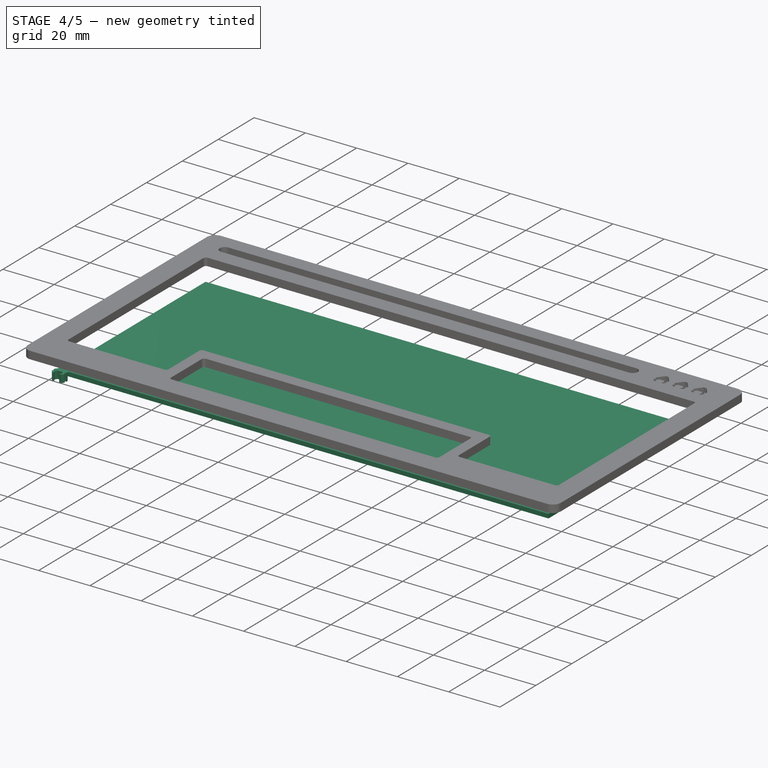
[diagram: stage 4 of 5 — iso view after this stage's code; geometry added in this stage tinted green]
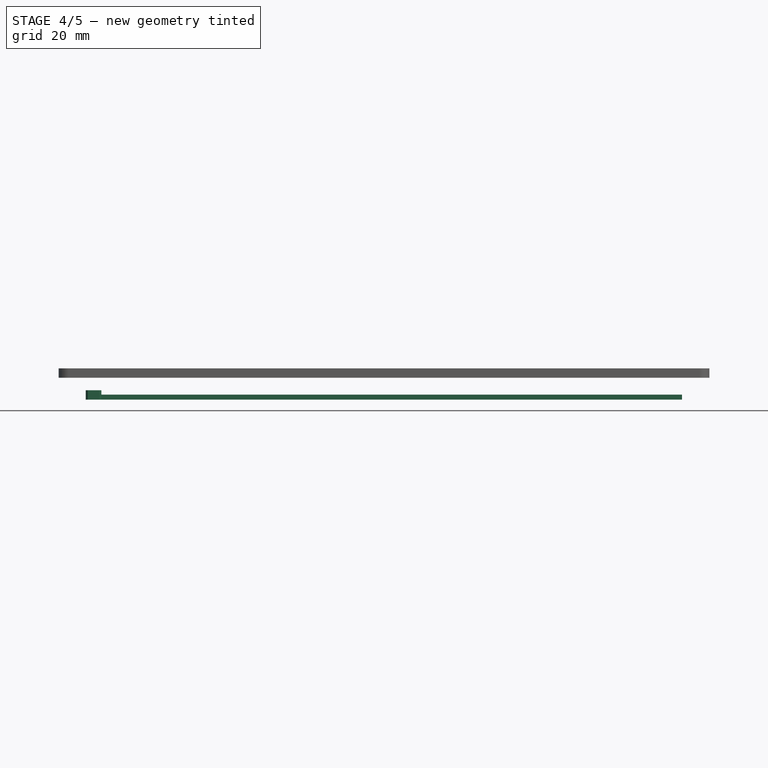
[diagram: stage 4 of 5 — front view after this stage's code; geometry added in this stage tinted green]
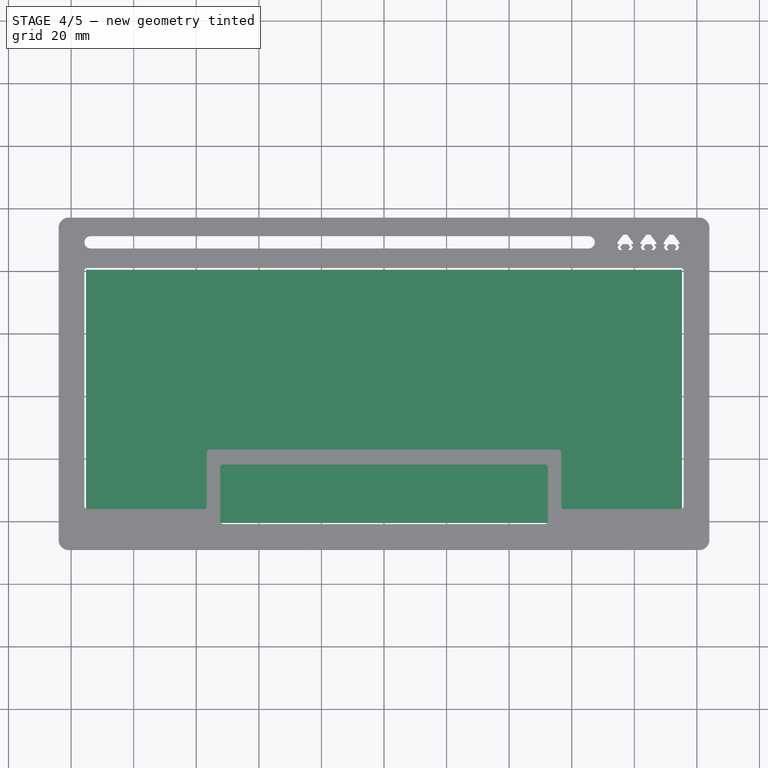
[diagram: stage 4 of 5 — top view after this stage's code; geometry added in this stage tinted green]
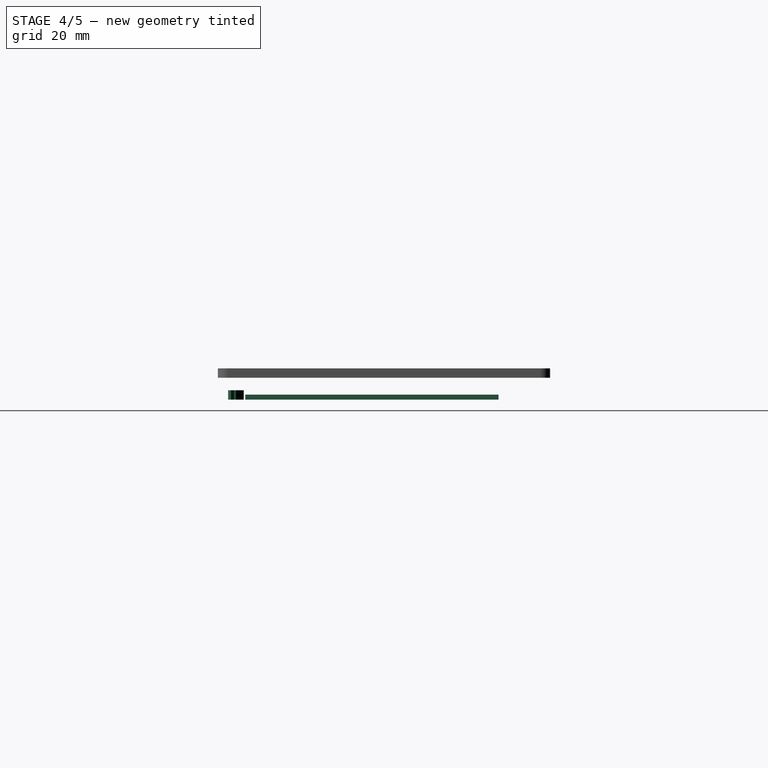
[diagram: stage 4 of 5 — right view after this stage's code; geometry added in this stage tinted green]
FEATURE [Sketcher::SketchObject] Sketch
  FullyConstrained = true
  MapMode = 5
  Support = -> [XY_Plane]
  expr: Constraints[10] = <<vals>>.spacing * 4 + <<vals>>.spaceOffset
  expr: Constraints[9] = <<vals>>.spacing * 10
  sketch-geometry (4):
    g0: LineSegment StartX=-95.25 StartY=40.4813 StartZ=0 EndX=95.25 EndY=40.4813 EndZ=0
    g1: LineSegment StartX=95.25 StartY=40.4813 StartZ=0 EndX=95.25 EndY=-40.4813 EndZ=0
    g2: LineSegment StartX=95.25 StartY=-40.4813 StartZ=0 EndX=-95.25 EndY=-40.4813 EndZ=0
    g3: LineSegment StartX=-95.25 StartY=-40.4813 StartZ=0 EndX=-95.25 EndY=40.4813 EndZ=0
  constraints (11):
    c: Coincident(g0,g1)
    c: Coincident(g1,g2)
    c: Coincident(g2,g3)
    c: Coincident(g3,g0)
    c: Horizontal(g0)
    c: Horizontal(g2)
    c: Vertical(g1)
    c: Vertical(g3)
    c: Symmetric(g0,g2,g-1)
    c: DistanceX(g0,g0) = 190.5
    c: DistanceY(g3,g3) = 80.9625
FEATURE [Spreadsheet::Sheet] Spreadsheet  label="vals"
  cells = A2=spacing; B2(spacing)=19.05; A3=border; B3(border)=10; A4=spaceOffset; B4(spaceOffset)==0.25 * spacing; A5=keysafety; B5(keysafety)=0.5; A7=spaceOffsetWidth; B7(spaceoffsetu)=5.5; A8=soWidth; B8(sowidth)==spaceoffsetu * spacing; A10=topExtra; B10(topExtr)==spaceOffset + 3; C10==border; A11=penHoldHeight; B11(penHoldHeight)=4; A13=borderWidth; B13(borderWidth)=1.5; A14=inlineSafety; B14(inlineSafety)=0.25
FEATURE [PartDesign::Pad] Pad
  Direction = (0,0,1)
  Length = 1.6
  Length2 = 10
  Profile = -> Sketch
  ReferenceAxis = -> Sketch [N_Axis]
  Type = 0
FEATURE [Sketcher::SketchObject] Sketch008
  FullyConstrained = false
  MapMode = 5
  Support = -> [XY_Plane002]
  expr: Constraints[108] = Sketch007.Constraints[102]
  expr: Constraints[109] = Sketch007.Constraints[103]
  expr: Constraints[191] = Sketch007.Constraints[152]
  expr: Constraints[212] = Sketch007.Constraints[160]
  expr: Constraints[213] = Sketch007.Constraints[161]
  expr: Constraints[295] = Sketch007.Constraints[214]
  expr: Constraints[326] = Sketch007.Constraints[108]
  expr: Constraints[327] = Sketch007.Constraints[107]
  expr: Constraints[328] = Sketch007.Constraints[108]
  expr: Constraints[329] = Sketch007.Constraints[108]
  expr: Constraints[81] = Sketch007.Constraints[81]
  sketch-geometry (118):
    g0: LineSegment StartX=-93.4445 StartY=-40.9417 StartZ=0 EndX=-92.1945 EndY=-40.9417 EndZ=0
    g1: LineSegment StartX=-92.1945 StartY=-40.9417 StartZ=0 EndX=-90.3195 EndY=-43.4417 EndZ=0
    g2: LineSegment StartX=-90.3195 StartY=-43.4417 StartZ=0 EndX=-90.3195 EndY=-44.0667 EndZ=0
    g3: LineSegment StartX=-90.3195 StartY=-44.0667 StartZ=0 EndX=-90.9445 EndY=-44.0667 EndZ=0
    g4: LineSegment StartX=-91.882 StartY=-44.0667 StartZ=0 EndX=-93.757 EndY=-44.0667 EndZ=0
    g5: LineSegment StartX=-93.757 StartY=-44.0667 StartZ=0 EndX=-94.382 EndY=-45.0042 EndZ=0
    g6: LineSegment StartX=-94.382 StartY=-45.0042 StartZ=0 EndX=-93.757 EndY=-45.9417 EndZ=0
    g7: LineSegment StartX=-94.6945 StartY=-45.9417 StartZ=0 EndX=-95.3195 EndY=-45.0042 EndZ=0
    g8: LineSegment StartX=-95.3195 StartY=-45.0042 StartZ=0 EndX=-94.6945 EndY=-44.0667 EndZ=0
    g9: LineSegment StartX=-94.6945 StartY=-44.0667 StartZ=0 EndX=-95.3195 EndY=-44.0667 EndZ=0
    g10: LineSegment StartX=-95.3195 StartY=-44.0667 StartZ=0 EndX=-95.3195 EndY=-43.4417 EndZ=0
    g11: LineSegment StartX=-95.3195 StartY=-43.4417 StartZ=0 EndX=-93.4445 EndY=-40.9417 EndZ=0
    g12: LineSegment StartX=-91.882 StartY=-44.0667 StartZ=0 EndX=-91.257 EndY=-45.0042 EndZ=0
    g13: LineSegment StartX=-91.257 StartY=-45.0042 StartZ=0 EndX=-91.882 EndY=-45.9417 EndZ=0
    g14: LineSegment StartX=-90.9445 StartY=-45.9417 StartZ=0 EndX=-90.3195 EndY=-45.0042 EndZ=0
    g15: LineSegment StartX=-90.3195 StartY=-45.0042 StartZ=0 EndX=-90.9445 EndY=-44.0667 EndZ=0
    g16: LineSegment StartX=-95.3195 StartY=-40.9417 StartZ=0 EndX=-94.6945 EndY=-40.9417 EndZ=0
    g17: LineSegment StartX=-94.6945 StartY=-40.9417 StartZ=0 EndX=-94.0695 EndY=-40.9417 EndZ=0
    g18: LineSegment StartX=-94.0695 StartY=-40.9417 StartZ=0 EndX=-93.4445 EndY=-40.9417 EndZ=0
    g19: LineSegment StartX=-93.4445 StartY=-40.9417 StartZ=0 EndX=-92.8195 EndY=-40.9417 EndZ=0
    g20: LineSegment StartX=-92.8195 StartY=-40.9417 StartZ=0 EndX=-92.1945 EndY=-40.9417 EndZ=0
    g21: LineSegment StartX=-92.1945 StartY=-40.9417 StartZ=0 EndX=-91.5695 EndY=-40.9417 EndZ=0
    g22: LineSegment StartX=-91.5695 StartY=-40.9417 StartZ=0 EndX=-90.9445 EndY=-40.9417 EndZ=0
    g23: LineSegment StartX=-90.9445 StartY=-40.9417 StartZ=0 EndX=-90.3195 EndY=-40.9417 EndZ=0
    g24: LineSegment StartX=-90.3195 StartY=-40.9417 StartZ=0 EndX=-90.3195 EndY=-41.5667 EndZ=0
    g25: LineSegment StartX=-90.3195 StartY=-41.5667 StartZ=0 EndX=-90.3195 EndY=-42.1917 EndZ=0
    g26: LineSegment StartX=-90.3195 StartY=-42.1917 StartZ=0 EndX=-90.3195 EndY=-42.8167 EndZ=0
    g27: LineSegment StartX=-90.3195 StartY=-42.8167 StartZ=0 EndX=-90.3195 EndY=-43.4417 EndZ=0
    g28: LineSegment StartX=-90.3195 StartY=-43.4417 StartZ=0 EndX=-90.3195 EndY=-44.0667 EndZ=0
    g29: LineSegment StartX=-90.3195 StartY=-44.0667 StartZ=0 EndX=-90.3195 EndY=-44.6917 EndZ=0
    g30: LineSegment StartX=-90.3195 StartY=-44.6917 StartZ=0 EndX=-90.3195 EndY=-45.3167 EndZ=0
    g31: LineSegment StartX=-90.3195 StartY=-45.3167 StartZ=0 EndX=-90.3195 EndY=-45.9417 EndZ=0
    g32: LineSegment StartX=-94.6945 StartY=-45.9417 StartZ=0 EndX=-93.757 EndY=-45.9417 EndZ=0
    g33: LineSegment StartX=-91.882 StartY=-45.9417 StartZ=0 EndX=-90.9445 EndY=-45.9417 EndZ=0
    g34: LineSegment StartX=-91.882 StartY=-44.0667 StartZ=0 EndX=-91.882 EndY=-40.9417 EndZ=0
    g35: LineSegment StartX=-93.757 StartY=-44.0667 StartZ=0 EndX=-93.757 EndY=-40.9417 EndZ=0
    g36: LineSegment StartX=-95.5746 StartY=-40.7671 StartZ=0 EndX=-73.5746 EndY=-40.7671 EndZ=0
    g37: LineSegment StartX=-73.5746 StartY=-40.7671 StartZ=0 EndX=-73.5746 EndY=-46.2671 EndZ=0
    g38: LineSegment StartX=-73.5746 StartY=-46.2671 StartZ=0 EndX=-95.5746 EndY=-46.2671 EndZ=0
    g39: LineSegment StartX=-95.5746 StartY=-46.2671 StartZ=0 EndX=-95.5746 EndY=-40.7671 EndZ=0
    g40: LineSegment StartX=-85.9606 StartY=-40.9232 StartZ=0 EndX=-84.7106 EndY=-40.9232 EndZ=0
    g41: LineSegment StartX=-84.7106 StartY=-40.9232 StartZ=0 EndX=-82.8356 EndY=-43.4232 EndZ=0
    g42: LineSegment StartX=-82.8356 StartY=-43.4232 StartZ=0 EndX=-82.8356 EndY=-44.0482 EndZ=0
    g43: LineSegment StartX=-82.8356 StartY=-44.0482 StartZ=0 EndX=-83.4606 EndY=-44.0482 EndZ=0
    g44: LineSegment StartX=-84.3981 StartY=-44.0482 StartZ=0 EndX=-86.2731 EndY=-44.0482 EndZ=0
    g45: LineSegment StartX=-86.2731 StartY=-44.0482 StartZ=0 EndX=-86.8981 EndY=-44.9857 EndZ=0
    g46: LineSegment StartX=-86.8981 StartY=-44.9857 StartZ=0 EndX=-86.2731 EndY=-45.9232 EndZ=0
    g47: LineSegment StartX=-87.2106 StartY=-45.9232 StartZ=0 EndX=-87.8356 EndY=-44.9857 EndZ=0
    g48: LineSegment StartX=-87.8356 StartY=-44.9857 StartZ=0 EndX=-87.2106 EndY=-44.0482 EndZ=0
    g49: LineSegment StartX=-87.2106 StartY=-44.0482 StartZ=0 EndX=-87.8356 EndY=-44.0482 EndZ=0
    g50: LineSegment StartX=-87.8356 StartY=-44.0482 StartZ=0 EndX=-87.8356 EndY=-43.4232 EndZ=0
    g51: LineSegment StartX=-87.8356 StartY=-43.4232 StartZ=0 EndX=-85.9606 EndY=-40.9232 EndZ=0
    g52: LineSegment StartX=-84.3981 StartY=-44.0482 StartZ=0 EndX=-83.7731 EndY=-44.9857 EndZ=0
    g53: LineSegment StartX=-83.7731 StartY=-44.9857 StartZ=0 EndX=-84.3981 EndY=-45.9232 EndZ=0
    g54: LineSegment StartX=-83.4606 StartY=-45.9232 StartZ=0 EndX=-82.8356 EndY=-44.9857 EndZ=0
    g55: LineSegment StartX=-82.8356 StartY=-44.9857 StartZ=0 EndX=-83.4606 EndY=-44.0482 EndZ=0
    g56: LineSegment StartX=-87.8356 StartY=-40.9232 StartZ=0 EndX=-87.2106 EndY=-40.9232 EndZ=0
    g57: LineSegment StartX=-87.2106 StartY=-40.9232 StartZ=0 EndX=-86.5856 EndY=-40.9232 EndZ=0
    g58: LineSegment StartX=-86.5856 StartY=-40.9232 StartZ=0 EndX=-85.9606 EndY=-40.9232 EndZ=0
    g59: LineSegment StartX=-85.9606 StartY=-40.9232 StartZ=0 EndX=-85.3356 EndY=-40.9232 EndZ=0
    g60: LineSegment StartX=-85.3356 StartY=-40.9232 StartZ=0 EndX=-84.7106 EndY=-40.9232 EndZ=0
    g61: LineSegment StartX=-84.7106 StartY=-40.9232 StartZ=0 EndX=-84.0856 EndY=-40.9232 EndZ=0
    g62: LineSegment StartX=-84.0856 StartY=-40.9232 StartZ=0 EndX=-83.4606 EndY=-40.9232 EndZ=0
    g63: LineSegment StartX=-83.4606 StartY=-40.9232 StartZ=0 EndX=-82.8356 EndY=-40.9232 EndZ=0
    g64: LineSegment StartX=-82.8356 StartY=-40.9232 StartZ=0 EndX=-82.8356 EndY=-41.5482 EndZ=0
    g65: LineSegment StartX=-82.8356 StartY=-41.5482 StartZ=0 EndX=-82.8356 EndY=-42.1732 EndZ=0
    g66: LineSegment StartX=-82.8356 StartY=-42.1732 StartZ=0 EndX=-82.8356 EndY=-42.7982 EndZ=0
    g67: LineSegment StartX=-82.8356 StartY=-42.7982 StartZ=0 EndX=-82.8356 EndY=-43.4232 EndZ=0
    g68: LineSegment StartX=-82.8356 StartY=-43.4232 StartZ=0 EndX=-82.8356 EndY=-44.0482 EndZ=0
    g69: LineSegment StartX=-82.8356 StartY=-44.0482 StartZ=0 EndX=-82.8356 EndY=-44.6732 EndZ=0
    g70: LineSegment StartX=-82.8356 StartY=-44.6732 StartZ=0 EndX=-82.8356 EndY=-45.2982 EndZ=0
    g71: LineSegment StartX=-82.8356 StartY=-45.2982 StartZ=0 EndX=-82.8356 EndY=-45.9232 EndZ=0
    g72: LineSegment StartX=-87.2106 StartY=-45.9232 StartZ=0 EndX=-86.2731 EndY=-45.9232 EndZ=0
    g73: LineSegment StartX=-84.3981 StartY=-45.9232 StartZ=0 EndX=-83.4606 EndY=-45.9232 EndZ=0
    g74: LineSegment StartX=-84.3981 StartY=-44.0482 StartZ=0 EndX=-84.3981 EndY=-40.9232 EndZ=0
    g75: LineSegment StartX=-86.2731 StartY=-44.0482 StartZ=0 EndX=-86.2731 EndY=-40.9232 EndZ=0
    g76: LineSegment StartX=-93.4445 StartY=-40.9417 StartZ=0 EndX=-85.9606 EndY=-40.9232 EndZ=0
    g77: LineSegment StartX=-78.4766 StartY=-40.9047 StartZ=0 EndX=-77.2266 EndY=-40.9047 EndZ=0
    g78: LineSegment StartX=-77.2266 StartY=-40.9047 StartZ=0 EndX=-75.3516 EndY=-43.4047 EndZ=0
    g79: LineSegment StartX=-75.3516 StartY=-43.4047 StartZ=0 EndX=-75.3516 EndY=-44.0297 EndZ=0
    g80: LineSegment StartX=-75.3516 StartY=-44.0297 StartZ=0 EndX=-75.9766 EndY=-44.0297 EndZ=0
    g81: LineSegment StartX=-76.9141 StartY=-44.0297 StartZ=0 EndX=-78.7891 EndY=-44.0297 EndZ=0
    g82: LineSegment StartX=-78.7891 StartY=-44.0297 StartZ=0 EndX=-79.4141 EndY=-44.9672 EndZ=0
    g83: LineSegment StartX=-79.4141 StartY=-44.9672 StartZ=0 EndX=-78.7891 EndY=-45.9047 EndZ=0
    g84: LineSegment StartX=-79.7266 StartY=-45.9047 StartZ=0 EndX=-80.3516 EndY=-44.9672 EndZ=0
    g85: LineSegment StartX=-80.3516 StartY=-44.9672 StartZ=0 EndX=-79.7266 EndY=-44.0297 EndZ=0
    g86: LineSegment StartX=-79.7266 StartY=-44.0297 StartZ=0 EndX=-80.3516 EndY=-44.0297 EndZ=0
    g87: LineSegment StartX=-80.3516 StartY=-44.0297 StartZ=0 EndX=-80.3516 EndY=-43.4047 EndZ=0
    g88: LineSegment StartX=-80.3516 StartY=-43.4047 StartZ=0 EndX=-78.4766 EndY=-40.9047 EndZ=0
    g89: LineSegment StartX=-76.9141 StartY=-44.0297 StartZ=0 EndX=-76.2891 EndY=-44.9672 EndZ=0
    g90: LineSegment StartX=-76.2891 StartY=-44.9672 StartZ=0 EndX=-76.9141 EndY=-45.9047 EndZ=0
    g91: LineSegment StartX=-75.9766 StartY=-45.9047 StartZ=0 EndX=-75.3516 EndY=-44.9672 EndZ=0
    g92: LineSegment StartX=-75.3516 StartY=-44.9672 StartZ=0 EndX=-75.9766 EndY=-44.0297 EndZ=0
    g93: LineSegment StartX=-80.3516 StartY=-40.9047 StartZ=0 EndX=-79.7266 EndY=-40.9047 EndZ=0
    g94: LineSegment StartX=-79.7266 StartY=-40.9047 StartZ=0 EndX=-79.1016 EndY=-40.9047 EndZ=0
    g95: LineSegment StartX=-79.1016 StartY=-40.9047 StartZ=0 EndX=-78.4766 EndY=-40.9047 EndZ=0
    g96: LineSegment StartX=-78.4766 StartY=-40.9047 StartZ=0 EndX=-77.8516 EndY=-40.9047 EndZ=0
    g97: LineSegment StartX=-77.8516 StartY=-40.9047 StartZ=0 EndX=-77.2266 EndY=-40.9047 EndZ=0
    g98: LineSegment StartX=-77.2266 StartY=-40.9047 StartZ=0 EndX=-76.6016 EndY=-40.9047 EndZ=0
    g99: LineSegment StartX=-76.6016 StartY=-40.9047 StartZ=0 EndX=-75.9766 EndY=-40.9047 EndZ=0
    g100: LineSegment StartX=-75.9766 StartY=-40.9047 StartZ=0 EndX=-75.3516 EndY=-40.9047 EndZ=0
    g101: LineSegment StartX=-75.3516 StartY=-40.9047 StartZ=0 EndX=-75.3516 EndY=-41.5297 EndZ=0
    g102: LineSegment StartX=-75.3516 StartY=-41.5297 StartZ=0 EndX=-75.3516 EndY=-42.1547 EndZ=0
    g103: LineSegment StartX=-75.3516 StartY=-42.1547 StartZ=0 EndX=-75.3516 EndY=-42.7797 EndZ=0
    g104: LineSegment StartX=-75.3516 StartY=-42.7797 StartZ=0 EndX=-75.3516 EndY=-43.4047 EndZ=0
    g105: LineSegment StartX=-75.3516 StartY=-43.4047 StartZ=0 EndX=-75.3516 EndY=-44.0297 EndZ=0
    g106: LineSegment StartX=-75.3516 StartY=-44.0297 StartZ=0 EndX=-75.3516 EndY=-44.6547 EndZ=0
    g107: LineSegment StartX=-75.3516 StartY=-44.6547 StartZ=0 EndX=-75.3516 EndY=-45.2797 EndZ=0
    g108: LineSegment StartX=-75.3516 StartY=-45.2797 StartZ=0 EndX=-75.3516 EndY=-45.9047 EndZ=0
    g109: LineSegment StartX=-79.7266 StartY=-45.9047 StartZ=0 EndX=-78.7891 EndY=-45.9047 EndZ=0
    g110: LineSegment StartX=-76.9141 StartY=-45.9047 StartZ=0 EndX=-75.9766 EndY=-45.9047 EndZ=0
    g111: LineSegment StartX=-76.9141 StartY=-44.0297 StartZ=0 EndX=-76.9141 EndY=-40.9047 EndZ=0
    g112: LineSegment StartX=-78.7891 StartY=-44.0297 StartZ=0 EndX=-78.7891 EndY=-40.9047 EndZ=0
    g113: LineSegment StartX=-85.9606 StartY=-40.9232 StartZ=0 EndX=-78.4766 EndY=-40.9047 EndZ=0
    g114: LineSegment StartX=-103.075 StartY=-36.2271 StartZ=0 EndX=-65.0746 EndY=-36.2271 EndZ=0
    g115: LineSegment StartX=-65.0746 StartY=-36.2271 StartZ=0 EndX=-65.0746 EndY=-48.2271 EndZ=0
    g116: LineSegment StartX=-65.0746 StartY=-48.2271 StartZ=0 EndX=-103.075 EndY=-48.2271 EndZ=0
    g117: LineSegment StartX=-103.075 StartY=-48.2271 StartZ=0 EndX=-103.075 EndY=-36.2271 EndZ=0
  constraints (330):
    c: Horizontal(g0)
    c: Coincident(g0,g1)
    c: Coincident(g1,g2)
    c: Coincident(g2,g3)
    c: Horizontal(g4)
    c: Coincident(g4,g5)
    c: Coincident(g5,g6)
    c: Coincident(g7,g8)
    c: Coincident(g8,g9)
    c: Coincident(g9,g10)
    c: Coincident(g10,g11)
    c: Coincident(g11,g0)
    c: Coincident(g4,g12)
    c: Coincident(g12,g13)
    c: Coincident(g14,g15)
    c: Coincident(g15,g3)
    c: Horizontal(g14,g12)
    c: Horizontal(g12,g5)
    c: Horizontal(g5,g7)
    c: Equal(g6,g7)
    c: Equal(g7,g13)
    c: Equal(g13,g14)
    c: Horizontal(g14,g13)
    c: Horizontal(g13,g6)
    c: Horizontal(g9)
    c: Horizontal(g3)
    c: Vertical(g2)
    c: Vertical(g10)
    c: Horizontal(g3,g4)
    c: Horizontal(g4,g8)
    c: Parallel(g15,g12)
    c: Parallel(g5,g8)
    c: Equal(g6,g5)
    c: Equal(g12,g13)
    c: Equal(g1,g11)
    c: Equal(g2,g10)
    c: Equal(g3,g9)
    c: Horizontal(g16)
    c: Coincident(g16,g17)
    c: Horizontal(g17)
    c: Coincident(g17,g18)
    c: Coincident(g18,g19)
    c: Horizontal(g19)
    c: Coincident(g19,g20)
    c: Coincident(g20,g21)
    c: Coincident(g21,g22)
    c: Coincident(g22,g23)
    c: Coincident(g23,g24)
    c: Vertical(g24)
    c: Coincident(g24,g25)
    c: Coincident(g25,g26)
    c: Coincident(g26,g27)
    c: Vertical(g27)
    c: Coincident(g27,g28)
    c: Coincident(g28,g29)
    c: Coincident(g29,g30)
    c: Coincident(g30,g31)
    c: Equal(g16,g17)
    c: Equal(g17,g18)
    c: Equal(g18,g20)
    c: Equal(g20,g19)
    c: Equal(g19,g21)
    c: Equal(g21,g22)
    c: Equal(g22,g23)
    c: Equal(g23,g24)
    c: Equal(g24,g25)
    c: Equal(g25,g26)
    c: Equal(g26,g27)
    c: Equal(g27,g28)
    c: Equal(g28,g29)
    c: Equal(g29,g30)
    c: Equal(g30,g31)
    c: Horizontal(g18)
    c: Horizontal(g21)
    c: Horizontal(g22)
    c: Horizontal(g23)
    c: Vertical(g25)
    c: Vertical(g26)
    c: Vertical(g29)
    c: Vertical(g30)
    c: Vertical(g31)
    c: DistanceY(g31,g23) = 5
    c: Coincident(g0,g18)
    c: Coincident(g20,g0)
    c: Coincident(g2,g28)
    c: Coincident(g1,g27)
    c: Symmetric(g29,g30,g14)
    c: Coincident(g32,g7)
    c: Coincident(g32,g6)
    c: Horizontal(g32)
    c: Coincident(g33,g13)
    c: Coincident(g33,g14)
    c: Coincident(g34,g4)
    c: Symmetric(g0,g21,g34)
    c: Vertical(g34)
    c: Vertical(g3,g22)
    c: Coincident(g35,g4)
    c: Vertical(g35)
    c: Symmetric(g17,g0,g35)
    c: Vertical(g13,g4)
    c: Coincident(g36,g37)
    c: Coincident(g37,g38)
    c: Coincident(g38,g39)
    c: Coincident(g39,g36)
    c: Horizontal(g36)
    c: Horizontal(g38)
    c: Vertical(g37)
    c: Vertical(g39)
    c: DistanceX(g36,g36) = 22
    c: DistanceY(g37,g37) = 5.5
    c: Horizontal(g40)
    c: Coincident(g40,g41)
    c: Coincident(g41,g42)
    c: Coincident(g42,g43)
    c: Horizontal(g44)
    c: Coincident(g44,g45)
    c: Coincident(g45,g46)
    c: Coincident(g47,g48)
    c: Coincident(g48,g49)
    c: Coincident(g49,g50)
    c: Coincident(g50,g51)
    c: Coincident(g51,g40)
    c: Coincident(g44,g52)
    c: Coincident(g52,g53)
    c: Coincident(g54,g55)
    c: Coincident(g55,g43)
    c: Horizontal(g54,g52)
    c: Horizontal(g52,g45)
    c: Horizontal(g45,g47)
    c: Equal(g46,g47)
    c: Equal(g47,g53)
    c: Equal(g53,g54)
    c: Horizontal(g54,g53)
    c: Horizontal(g53,g46)
    c: Horizontal(g49)
    c: Horizontal(g43)
    c: Vertical(g42)
    c: Vertical(g50)
    c: Horizontal(g43,g44)
    c: Horizontal(g44,g48)
    c: Parallel(g55,g52)
    c: Parallel(g45,g48)
    c: Equal(g46,g45)
    c: Equal(g52,g53)
    c: Equal(g41,g51)
    c: Equal(g42,g50)
    c: Equal(g43,g49)
    c: Horizontal(g56)
    c: Coincident(g56,g57)
    c: Horizontal(g57)
    c: Coincident(g57,g58)
    c: Coincident(g58,g59)
    c: Horizontal(g59)
    c: Coincident(g59,g60)
    c: Coincident(g60,g61)
    c: Coincident(g61,g62)
    c: Coincident(g62,g63)
    c: Coincident(g63,g64)
    c: Vertical(g64)
    c: Coincident(g64,g65)
    c: Coincident(g65,g66)
    c: Coincident(g66,g67)
    c: Vertical(g67)
    c: Coincident(g67,g68)
    c: Coincident(g68,g69)
    c: Coincident(g69,g70)
    c: Coincident(g70,g71)
    c: Equal(g56,g57)
    c: Equal(g57,g58)
    c: Equal(g58,g60)
    c: Equal(g60,g59)
    c: Equal(g59,g61)
    c: Equal(g61,g62)
    c: Equal(g62,g63)
    c: Equal(g63,g64)
    c: Equal(g64,g65)
    c: Equal(g65,g66)
    c: Equal(g66,g67)
    c: Equal(g67,g68)
    c: Equal(g68,g69)
    c: Equal(g69,g70)
    c: Equal(g70,g71)
    c: Horizontal(g58)
    c: Horizontal(g61)
    c: Horizontal(g62)
    c: Horizontal(g63)
    c: Vertical(g65)
    c: Vertical(g66)
    c: Vertical(g69)
    c: Vertical(g70)
    c: Vertical(g71)
    c: DistanceY(g71,g63) = 0
    c: Coincident(g40,g58)
    c: Coincident(g60,g40)
    c: Coincident(g42,g68)
    c: Coincident(g41,g67)
    c: Symmetric(g69,g70,g54)
    c: Coincident(g72,g47)
    c: Coincident(g72,g46)
    c: Horizontal(g72)
    c: Coincident(g73,g53)
    c: Coincident(g73,g54)
    c: Coincident(g74,g44)
    c: Symmetric(g40,g61,g74)
    c: Vertical(g74)
    c: Vertical(g43,g62)
    c: Coincident(g75,g44)
    c: Vertical(g75)
    c: Symmetric(g57,g40,g75)
    c: Vertical(g53,g44)
    c: Coincident(g0,g76)
    c: Coincident(g40,g76)
    c: Distance(g76) = 0
    c: Angle(g76) = 0
    c: Horizontal(g77)
    c: Coincident(g77,g78)
    c: Coincident(g78,g79)
    c: Coincident(g79,g80)
    c: Horizontal(g81)
    c: Coincident(g81,g82)
    c: Coincident(g82,g83)
    c: Coincident(g84,g85)
    c: Coincident(g85,g86)
    c: Coincident(g86,g87)
    c: Coincident(g87,g88)
    c: Coincident(g88,g77)
    c: Coincident(g81,g89)
    c: Coincident(g89,g90)
    c: Coincident(g91,g92)
    c: Coincident(g92,g80)
    c: Horizontal(g91,g89)
    c: Horizontal(g89,g82)
    c: Horizontal(g82,g84)
    c: Equal(g83,g84)
    c: Equal(g84,g90)
    c: Equal(g90,g91)
    c: Horizontal(g91,g90)
    c: Horizontal(g90,g83)
    c: Horizontal(g86)
    c: Horizontal(g80)
    c: Vertical(g79)
    c: Vertical(g87)
    c: Horizontal(g80,g81)
    c: Horizontal(g81,g85)
    c: Parallel(g92,g89)
    c: Parallel(g82,g85)
    c: Equal(g83,g82)
    c: Equal(g89,g90)
    c: Equal(g78,g88)
    c: Equal(g79,g87)
    c: Equal(g80,g86)
    c: Horizontal(g93)
    c: Coincident(g93,g94)
    c: Horizontal(g94)
    c: Coincident(g94,g95)
    c: Coincident(g95,g96)
    c: Horizontal(g96)
    c: Coincident(g96,g97)
    c: Coincident(g97,g98)
    c: Coincident(g98,g99)
    c: Coincident(g99,g100)
    c: Coincident(g100,g101)
    c: Vertical(g101)
    c: Coincident(g101,g102)
    c: Coincident(g102,g103)
    c: Coincident(g103,g104)
    c: Vertical(g104)
    c: Coincident(g104,g105)
    c: Coincident(g105,g106)
    c: Coincident(g106,g107)
    c: Coincident(g107,g108)
    c: Equal(g93,g94)
    c: Equal(g94,g95)
    c: Equal(g95,g97)
    c: Equal(g97,g96)
    c: Equal(g96,g98)
    c: Equal(g98,g99)
    c: Equal(g99,g100)
    c: Equal(g100,g101)
    c: Equal(g101,g102)
    c: Equal(g102,g103)
    c: Equal(g103,g104)
    c: Equal(g104,g105)
    c: Equal(g105,g106)
    c: Equal(g106,g107)
    c: Equal(g107,g108)
    c: Horizontal(g95)
    c: Horizontal(g98)
    c: Horizontal(g99)
    c: Horizontal(g100)
    c: Vertical(g102)
    c: Vertical(g103)
    c: Vertical(g106)
    c: Vertical(g107)
    c: Vertical(g108)
    c: DistanceY(g108,g100) = 0
    c: Coincident(g77,g95)
    c: Coincident(g97,g77)
    c: Coincident(g79,g105)
    c: Coincident(g78,g104)
    c: Symmetric(g106,g107,g91)
    c: Coincident(g109,g84)
    c: Coincident(g109,g83)
    c: Horizontal(g109)
    c: Coincident(g110,g90)
    c: Coincident(g110,g91)
    c: Coincident(g111,g81)
    c: Symmetric(g77,g98,g111)
    c: Vertical(g111)
    c: Vertical(g80,g99)
    c: Coincident(g112,g81)
    c: Vertical(g112)
    c: Symmetric(g94,g77,g112)
    c: Vertical(g90,g81)
    c: Coincident(g40,g113)
    c: Coincident(g77,g113)
    c: Equal(g76,g113)
    c: Parallel(g113,g76)
    c: Coincident(g114,g115)
    c: Coincident(g115,g116)
    c: Coincident(g116,g117)
    c: Coincident(g117,g114)
    c: Horizontal(g114)
    c: Horizontal(g116)
    c: Vertical(g115)
    c: Vertical(g117)
    c: DistanceY(g115,g115) = 0
    c: DistanceX(g114,g114) = 38
    c: DistanceX(g36,g114) = 0
    c: DistanceY(g116,g38) = 0
FEATURE [PartDesign::Pad] Pad002
  Direction = (0,0,1)
  Length = 3
  Length2 = 10
  Profile = -> Sketch008
  ReferenceAxis = -> Sketch008 [N_Axis]
  Type = 0
FEATURE [Sketcher::SketchObject] Sketch010
  ExternalGeometry = -> [Pad003]
  FullyConstrained = true
  MapMode = 5
  Placement = pos=(0,0,10) rot=(0,0,1;0rad)
  Support = -> [Pad003]
  expr: Constraints[46] = <<vals>>.inlineSafety
  expr: Constraints[47] = <<vals>>.inlineSafety
  sketch-geometry (16):
    g0: ArcOfCircle CenterX=-100.75 CenterY=53.7438 CenterZ=0 NormalX=0 NormalY=0 NormalZ=1 AngleXU=0 Radius=3.25 StartAngle=1.5708 EndAngle=3.14159
    g1: ArcOfCircle CenterX=100.75 CenterY=53.7438 CenterZ=0 NormalX=0 NormalY=0 NormalZ=1 AngleXU=0 Radius=3.25 StartAngle=6.28319 EndAngle=7.85398
    g2: ArcOfCircle CenterX=100.75 CenterY=-45.9813 CenterZ=0 NormalX=0 NormalY=0 NormalZ=1 AngleXU=0 Radius=3.25 StartAngle=4.71239 EndAngle=6.28319
    g3: ArcOfCircle CenterX=-100.75 CenterY=-45.9813 CenterZ=0 NormalX=0 NormalY=0 NormalZ=1 AngleXU=0 Radius=3.25 StartAngle=3.14159 EndAngle=4.71239
    g4: LineSegment StartX=-104 StartY=-45.9813 StartZ=0 EndX=-104 EndY=53.7438 EndZ=0
    g5: LineSegment StartX=-100.75 StartY=56.9937 StartZ=0 EndX=100.75 EndY=56.9937 EndZ=0
    g6: LineSegment StartX=104 StartY=53.7437 StartZ=0 EndX=104 EndY=-45.9813 EndZ=0
    g7: LineSegment StartX=100.75 StartY=-49.2312 StartZ=0 EndX=-100.75 EndY=-49.2312 EndZ=0
    g8: ArcOfCircle CenterX=100.75 CenterY=53.7438 CenterZ=0 NormalX=0 NormalY=0 NormalZ=1 AngleXU=0 Radius=3.75 StartAngle=5.32817e-08 EndAngle=1.5708
    g9: ArcOfCircle CenterX=100.75 CenterY=-45.9813 CenterZ=0 NormalX=0 NormalY=0 NormalZ=1 AngleXU=0 Radius=3.75 StartAngle=4.71239 EndAngle=6.28319
    g10: ArcOfCircle CenterX=-100.75 CenterY=-45.9813 CenterZ=0 NormalX=0 NormalY=0 NormalZ=1 AngleXU=0 Radius=3.75 StartAngle=3.14159 EndAngle=4.71239
    g11: ArcOfCircle CenterX=-100.75 CenterY=53.7438 CenterZ=0 NormalX=0 NormalY=0 NormalZ=1 AngleXU=0 Radius=3.75 StartAngle=1.5708 EndAngle=3.14159
    g12: LineSegment StartX=-100.75 StartY=57.4937 StartZ=0 EndX=100.75 EndY=57.4937 EndZ=0
    g13: LineSegment StartX=104.5 StartY=53.7438 StartZ=0 EndX=104.5 EndY=-45.9813 EndZ=0
    g14: LineSegment StartX=-100.75 StartY=-49.7313 StartZ=0 EndX=100.75 EndY=-49.7313 EndZ=0
    g15: LineSegment StartX=-104.5 StartY=-45.9813 StartZ=0 EndX=-104.5 EndY=53.7438 EndZ=0
  constraints (48):
    c: Coincident(g0,g-3)
    c: Coincident(g1,g-6)
    c: Coincident(g2,g-5)
    c: Coincident(g3,g-4)
    c: Coincident(g4,g3)
    c: Coincident(g4,g0)
    c: Vertical(g4)
    c: Coincident(g5,g0)
    c: Coincident(g5,g1)
    c: Horizontal(g5)
    c: Coincident(g6,g1)
    c: Coincident(g6,g2)
    c: Vertical(g6)
    c: Coincident(g7,g2)
    c: Coincident(g7,g3)
    c: Horizontal(g7)
    c: Coincident(g8,g1)
    c: Coincident(g9,g2)
    c: Coincident(g10,g3)
    c: Coincident(g11,g0)
    c: Coincident(g12,g11)
    c: Coincident(g12,g8)
    c: Horizontal(g12)
    c: Coincident(g13,g8)
    c: Coincident(g13,g9)
    c: Vertical(g13)
    c: Coincident(g14,g10)
    c: Coincident(g14,g9)
    c: Horizontal(g14)
    c: Coincident(g15,g10)
    c: Coincident(g15,g11)
    c: Vertical(g15)
    c: Vertical(g0,g0)
    c: Vertical(g0,g11)
    c: Horizontal(g0,g0)
    c: Horizontal(g0,g11)
    c: Horizontal(g3,g3)
    c: Horizontal(g3,g10)
    c: Vertical(g3,g3)
    c: Vertical(g3,g10)
    c: Horizontal(g2,g2)
    c: Horizontal(g2,g9)
    c: Vertical(g2,g2)
    c: Vertical(g2,g9)
    c: Vertical(g1,g8)
    c: Vertical(g8,g1)
    c: DistanceX(g1,g-6) = 0.25
    c: DistanceX(g-6,g8) = 0.25
FEATURE [PartDesign::Pocket] Pocket007
  BaseFeature = -> Pad003
  Direction = (0,0,-1)
  Length = 5
  Length2 = 5
  Profile = -> Sketch010
  ReferenceAxis = -> Sketch010 [N_Axis]
  Type = 0
FEATURE [PartDesign::Body] Body003
  Group = -> [ShapeBinder,Pad003,Sketch010,Pocket007]
  Origin = -> Origin003
  Tip = -> Pocket007
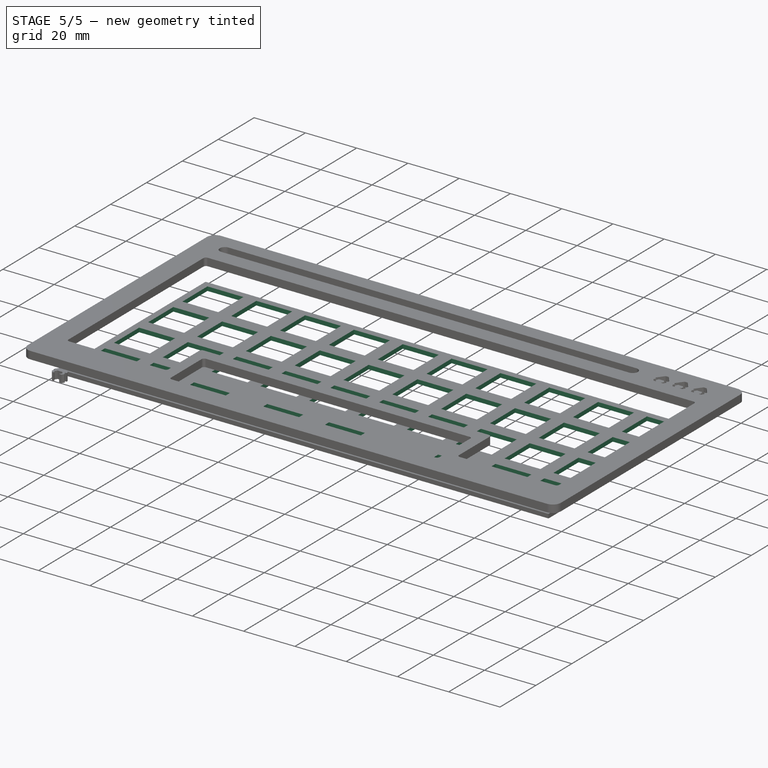
[diagram: stage 5 of 5 — iso view after this stage's code; geometry added in this stage tinted green]
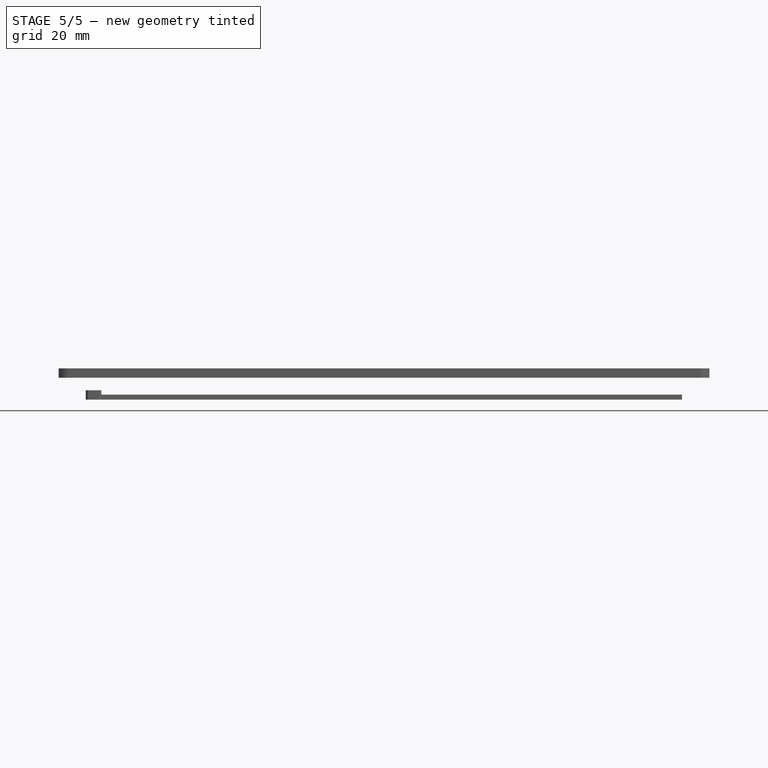
[diagram: stage 5 of 5 — front view after this stage's code; geometry added in this stage tinted green]
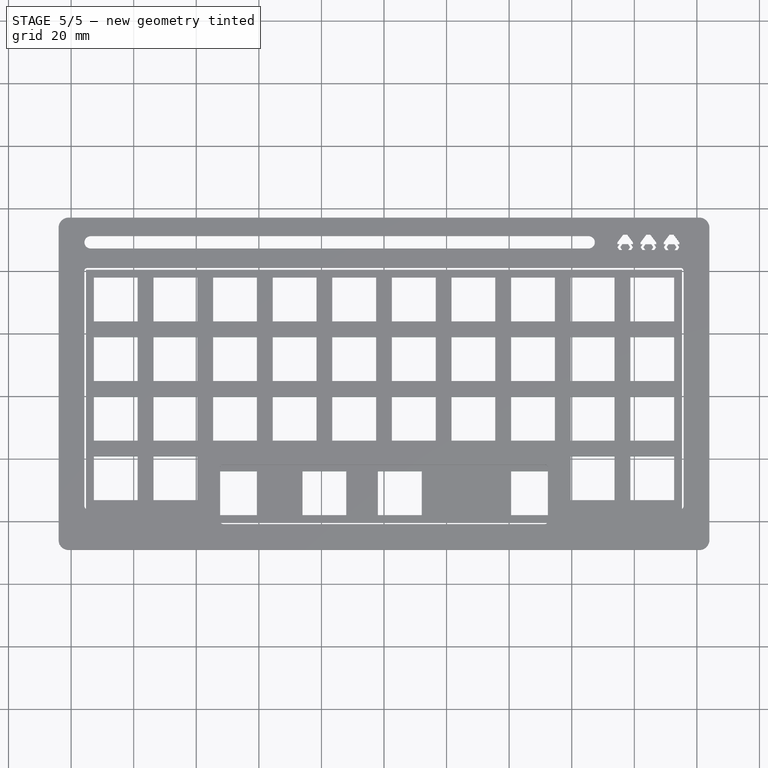
[diagram: stage 5 of 5 — top view after this stage's code; geometry added in this stage tinted green]
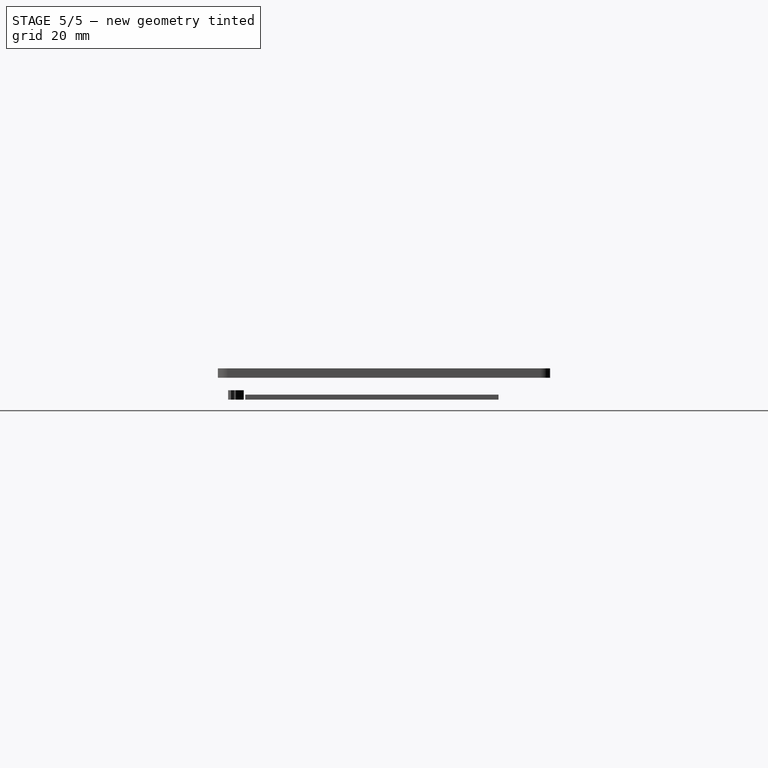
[diagram: stage 5 of 5 — right view after this stage's code; geometry added in this stage tinted green]
FEATURE [Sketcher::SketchObject] Sketch001
  ExternalGeometry = -> [Pad]
  FullyConstrained = true
  MapMode = 5
  Placement = pos=(0,0,1.6) rot=(0,0,1;0rad)
  Support = -> [Pad]
  expr: Constraints[10] = (<<vals>>.spacing - 14) / 2
  expr: Constraints[11] = (<<vals>>.spacing - 14) / 2
  sketch-geometry (4):
    g0: LineSegment StartX=-92.725 StartY=37.9563 StartZ=0 EndX=-78.725 EndY=37.9563 EndZ=0
    g1: LineSegment StartX=-78.725 StartY=37.9563 StartZ=0 EndX=-78.725 EndY=23.9563 EndZ=0
    g2: LineSegment StartX=-78.725 StartY=23.9563 StartZ=0 EndX=-92.725 EndY=23.9563 EndZ=0
    g3: LineSegment StartX=-92.725 StartY=23.9563 StartZ=0 EndX=-92.725 EndY=37.9563 EndZ=0
  constraints (12):
    c: Coincident(g0,g1)
    c: Coincident(g1,g2)
    c: Coincident(g2,g3)
    c: Coincident(g3,g0)
    c: Horizontal(g0)
    c: Horizontal(g2)
    c: Vertical(g1)
    c: Vertical(g3)
    c: DistanceX(g0,g0) = 14
    c: Equal(g0,g3)
    c: DistanceY(g0,g-3) = 2.525
    c: DistanceX(g-3,g0) = 2.525
FEATURE [PartDesign::Pocket] Pocket
  BaseFeature = -> Pad
  Direction = (0,0,-1)
  Length = 5
  Length2 = 5
  Profile = -> Sketch001
  ReferenceAxis = -> Sketch001 [N_Axis]
  Type = 0
FEATURE [PartDesign::LinearPattern] LinearPattern
  Direction = -> Sketch001 [H_Axis]
  Length = 171.45
  Occurrences = 10
  expr: Length = <<vals>>.spacing * 9
FEATURE [PartDesign::LinearPattern] LinearPattern001
  Direction = -> Sketch001 [V_Axis]
  Length = 38.1
  Occurrences = 3
  Reversed = true
  expr: Length = Spreadsheet.spacing * 2
FEATURE [PartDesign::MultiTransform] MultiTransform
  BaseFeature = -> Pocket
  Originals = -> [Pocket]
  Transformations = -> [LinearPattern,LinearPattern001]
FEATURE [Sketcher::SketchObject] Sketch002
  ExternalGeometry = -> [MultiTransform]
  FullyConstrained = true
  MapMode = 5
  Placement = pos=(0,0,1.6) rot=(0,0,1;0rad)
  Support = -> [MultiTransform]
  expr: Constraints[23] = <<vals>>.spacing
  expr: Constraints[44] = <<vals>>.spacing + <<vals>>.spaceOffset
  expr: Constraints[46] = <<vals>>.spacing / 2
  expr: Constraints[89] = <<vals>>.spacing
  expr: Constraints[90] = <<vals>>.spacing
  sketch-geometry (32):
    g0: LineSegment StartX=-92.725 StartY=-19.1937 StartZ=0 EndX=-78.725 EndY=-19.1937 EndZ=0
    g1: LineSegment StartX=-78.725 StartY=-19.1937 StartZ=0 EndX=-78.725 EndY=-33.1937 EndZ=0
    g2: LineSegment StartX=-78.725 StartY=-33.1937 StartZ=0 EndX=-92.725 EndY=-33.1937 EndZ=0
    g3: LineSegment StartX=-92.725 StartY=-33.1937 StartZ=0 EndX=-92.725 EndY=-19.1937 EndZ=0
    g4: LineSegment StartX=78.725 StartY=-19.1937 StartZ=0 EndX=92.725 EndY=-19.1937 EndZ=0
    g5: LineSegment StartX=92.725 StartY=-19.1937 StartZ=0 EndX=92.725 EndY=-33.1937 EndZ=0
    g6: LineSegment StartX=92.725 StartY=-33.1937 StartZ=0 EndX=78.725 EndY=-33.1937 EndZ=0
    g7: LineSegment StartX=78.725 StartY=-33.1937 StartZ=0 EndX=78.725 EndY=-19.1937 EndZ=0
    g8: LineSegment StartX=-26.05 StartY=-23.9562 StartZ=0 EndX=-12.05 EndY=-23.9562 EndZ=0
    g9: LineSegment StartX=-12.05 StartY=-23.9562 StartZ=0 EndX=-12.05 EndY=-37.9562 EndZ=0
    g10: LineSegment StartX=-12.05 StartY=-37.9562 StartZ=0 EndX=-26.05 EndY=-37.9562 EndZ=0
    g11: LineSegment StartX=-26.05 StartY=-37.9562 StartZ=0 EndX=-26.05 EndY=-23.9562 EndZ=0
    g12: LineSegment StartX=12.05 StartY=-23.9562 StartZ=0 EndX=-1.95 EndY=-23.9562 EndZ=0
    g13: LineSegment StartX=-1.95 StartY=-23.9562 StartZ=0 EndX=-1.95 EndY=-37.9562 EndZ=0
    g14: LineSegment StartX=-1.95 StartY=-37.9562 StartZ=0 EndX=12.05 EndY=-37.9562 EndZ=0
    g15: LineSegment StartX=12.05 StartY=-37.9562 StartZ=0 EndX=12.05 EndY=-23.9562 EndZ=0
    g16: LineSegment StartX=-73.675 StartY=-19.1937 StartZ=0 EndX=-59.675 EndY=-19.1937 EndZ=0
    g17: LineSegment StartX=-59.675 StartY=-19.1937 StartZ=0 EndX=-59.675 EndY=-33.1938 EndZ=0
    g18: LineSegment StartX=-59.675 StartY=-33.1938 StartZ=0 EndX=-73.675 EndY=-33.1938 EndZ=0
    g19: LineSegment StartX=-73.675 StartY=-33.1938 StartZ=0 EndX=-73.675 EndY=-19.1937 EndZ=0
    g20: LineSegment StartX=-54.625 StartY=-23.9562 StartZ=0 EndX=-40.625 EndY=-23.9562 EndZ=0
    g21: LineSegment StartX=-40.625 StartY=-23.9562 StartZ=0 EndX=-40.625 EndY=-37.9562 EndZ=0
    g22: LineSegment StartX=-40.625 StartY=-37.9562 StartZ=0 EndX=-54.625 EndY=-37.9562 EndZ=0
    g23: LineSegment StartX=-54.625 StartY=-37.9562 StartZ=0 EndX=-54.625 EndY=-23.9562 EndZ=0
    g24: LineSegment StartX=40.625 StartY=-23.9562 StartZ=0 EndX=54.625 EndY=-23.9562 EndZ=0
    g25: LineSegment StartX=54.625 StartY=-23.9562 StartZ=0 EndX=54.625 EndY=-37.9562 EndZ=0
    g26: LineSegment StartX=54.625 StartY=-37.9562 StartZ=0 EndX=40.625 EndY=-37.9562 EndZ=0
    g27: LineSegment StartX=40.625 StartY=-37.9562 StartZ=0 EndX=40.625 EndY=-23.9562 EndZ=0
    g28: LineSegment StartX=59.675 StartY=-19.1937 StartZ=0 EndX=73.675 EndY=-19.1937 EndZ=0
    g29: LineSegment StartX=73.675 StartY=-19.1937 StartZ=0 EndX=73.675 EndY=-33.1938 EndZ=0
    g30: LineSegment StartX=73.675 StartY=-33.1938 StartZ=0 EndX=59.675 EndY=-33.1938 EndZ=0
    g31: LineSegment StartX=59.675 StartY=-33.1938 StartZ=0 EndX=59.675 EndY=-19.1937 EndZ=0
  constraints (93):
    c: Coincident(g0,g1)
    c: Coincident(g1,g2)
    c: Coincident(g2,g3)
    c: Coincident(g3,g0)
    c: Horizontal(g0)
    c: Horizontal(g2)
    c: Vertical(g1)
    c: Vertical(g3)
    c: Coincident(g4,g5)
    c: Coincident(g5,g6)
    c: Coincident(g6,g7)
    c: Coincident(g7,g4)
    c: Horizontal(g4)
    c: Horizontal(g6)
    c: Vertical(g5)
    c: Vertical(g7)
    c: Equal(g0,g3)
    c: Equal(g3,g7)
    c: Equal(g7,g4)
    c: Equal(g4,g-3)
    c: Vertical(g0,g-3)
    c: Vertical(g-4,g4)
    c: Horizontal(g4,g0)
    c: DistanceY(g2,g-3) = 19.05
    c: Coincident(g8,g9)
    c: Coincident(g9,g10)
    c: Coincident(g10,g11)
    c: Coincident(g11,g8)
    c: Horizontal(g8)
    c: Horizontal(g10)
    c: Vertical(g9)
    c: Vertical(g11)
    c: Coincident(g12,g13)
    c: Coincident(g13,g14)
    c: Coincident(g14,g15)
    c: Coincident(g15,g12)
    c: Horizontal(g12)
    c: Horizontal(g14)
    c: Vertical(g13)
    c: Vertical(g15)
    c: Equal(g12,g8)
    c: Equal(g8,g9)
    c: Equal(g9,g15)
    c: Equal(g15,g-4)
    c: DistanceY(g9,g-6) = 23.8125
    c: Symmetric(g8,g12,g-2)
    c: DistanceX(g-5,g12) = 9.525
    c: Coincident(g16,g17)
    c: Coincident(g17,g18)
    c: Coincident(g18,g19)
    c: Coincident(g19,g16)
    c: Horizontal(g16)
    c: Horizontal(g18)
    c: Vertical(g17)
    c: Vertical(g19)
    c: Coincident(g20,g21)
    c: Coincident(g21,g22)
    c: Coincident(g22,g23)
    c: Coincident(g23,g20)
    c: Horizontal(g20)
    c: Horizontal(g22)
    c: Vertical(g21)
    c: Vertical(g23)
    c: Coincident(g24,g25)
    c: Coincident(g25,g26)
    c: Coincident(g26,g27)
    c: Coincident(g27,g24)
    c: Horizontal(g24)
    c: Horizontal(g26)
    c: Vertical(g25)
    c: Vertical(g27)
    c: Coincident(g28,g29)
    c: Coincident(g29,g30)
    c: Coincident(g30,g31)
    c: Coincident(g31,g28)
    c: Horizontal(g28)
    c: Horizontal(g30)
    c: Vertical(g29)
    c: Vertical(g31)
    c: Equal(g31,g28)
    c: Equal(g28,g24)
    c: Equal(g24,g27)
    c: Equal(g27,g17)
    c: Equal(g17,g23)
    c: Equal(g23,g20)
    c: Equal(g20,g16)
    c: Horizontal(g16,g0)
    c: Equal(g16,g-4)
    c: Horizontal(g20,g8)
    c: DistanceX(g1,g17) = 19.05
    c: DistanceX(g18,g22) = 19.05
    c: Symmetric(g20,g24,g-2)
    c: Symmetric(g28,g16,g-2)
FEATURE [PartDesign::Pocket] Pocket001
  BaseFeature = -> MultiTransform
  Direction = (0,0,-1)
  Length = 5
  Length2 = 5
  Profile = -> Sketch002
  ReferenceAxis = -> Sketch002 [N_Axis]
  Type = 0
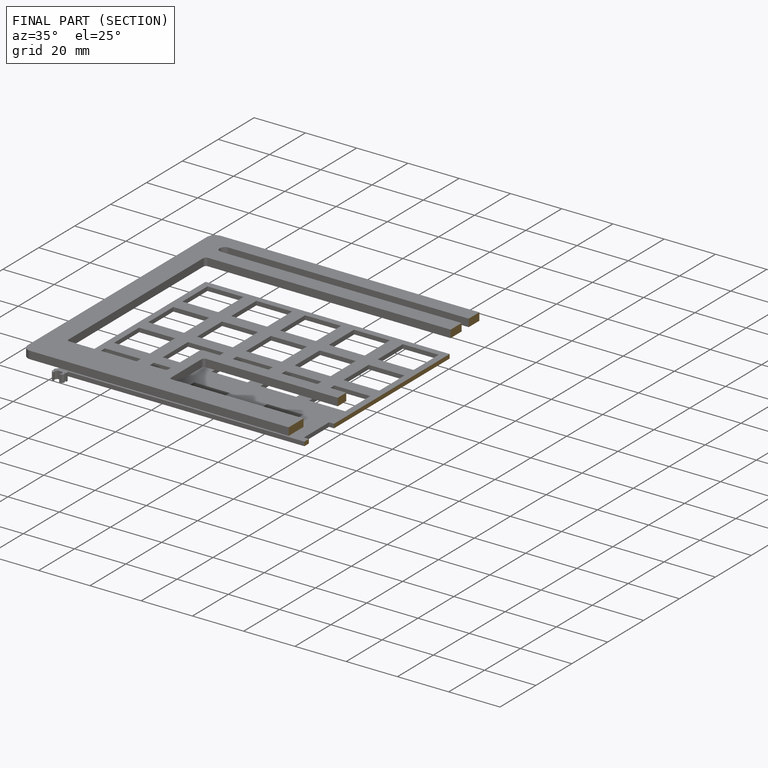
[diagram: finished part — half-section view (interior)]
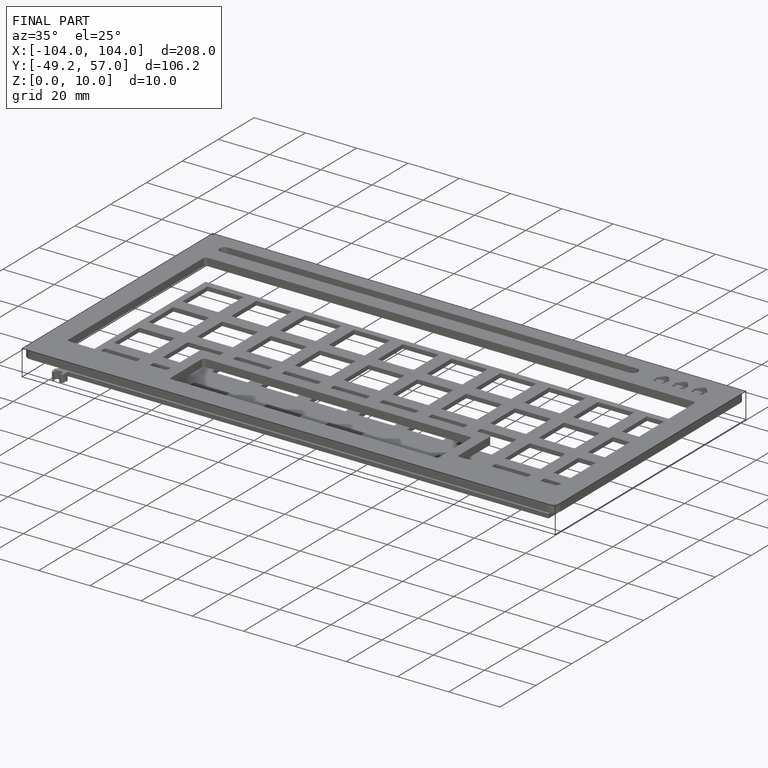
[diagram: finished part — iso view with bounding-box wireframe]
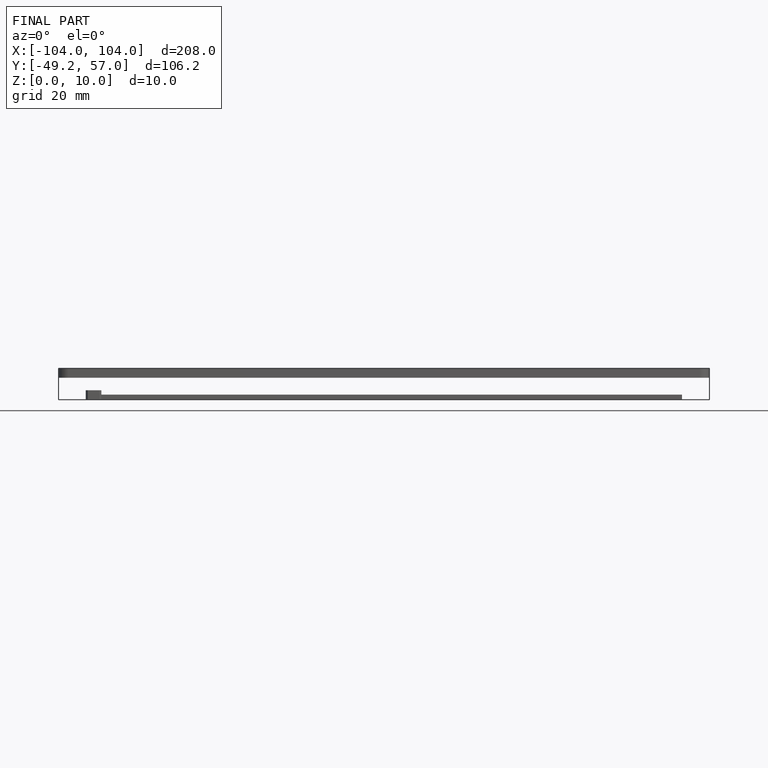
[diagram: finished part — front view with bounding-box wireframe]
